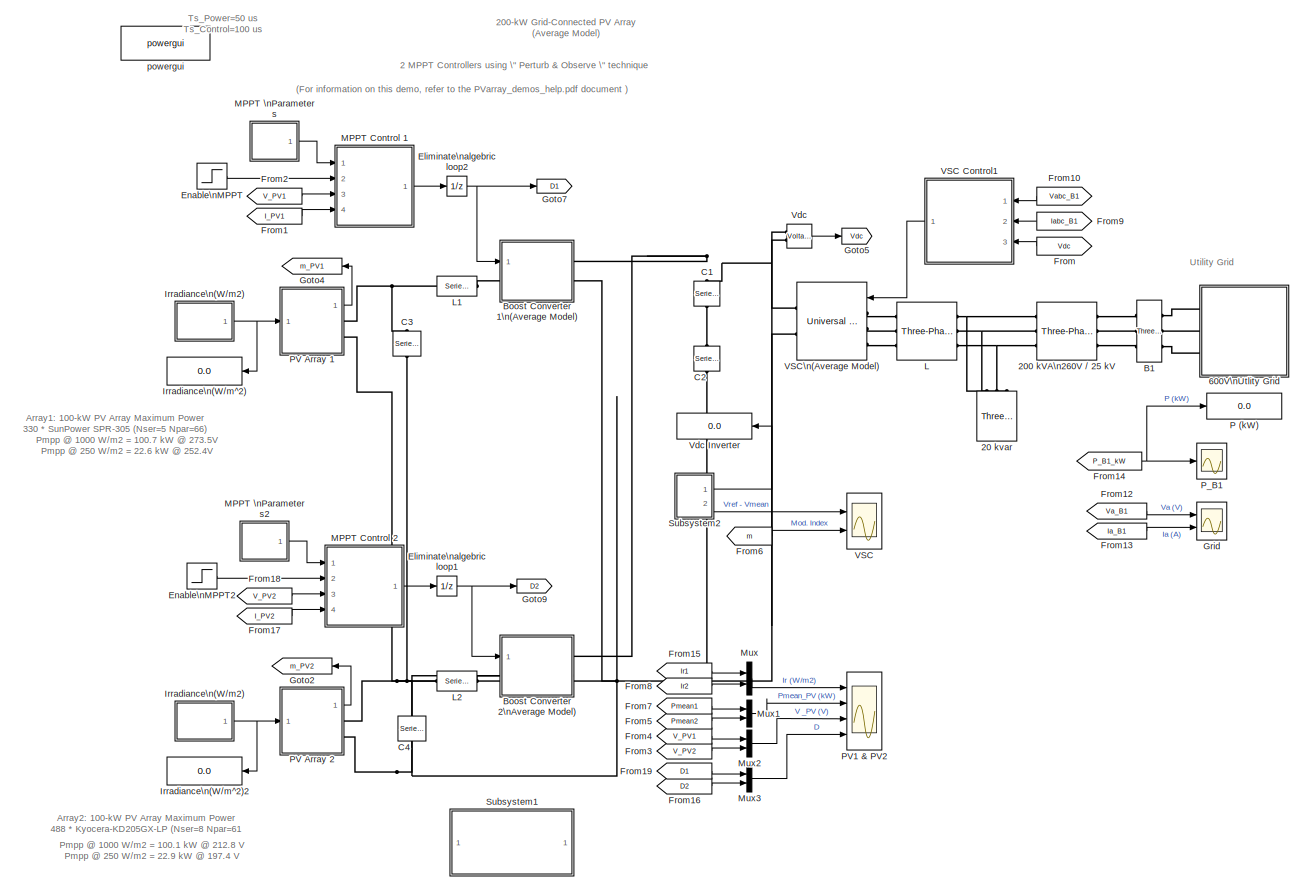
[diagram: root canvas - part 1/1, most of the canvas]
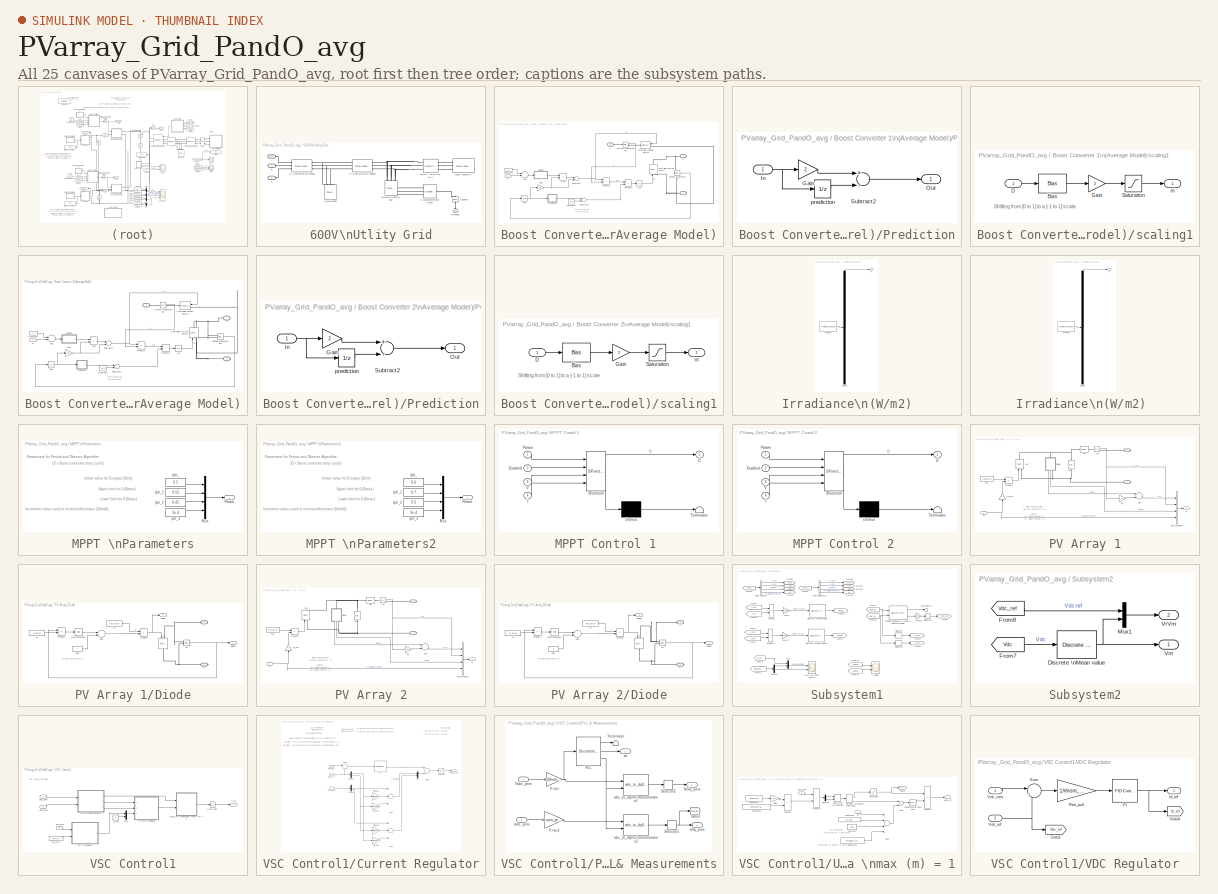
[diagram: thumbnail index - all 25 canvases of the model, root first then tree order]
MODEL PVarray_Grid_PandO_avg
KIND model
CONFIG PreLoadFcn = Ts_Power=50e-6\nTs_Control=100e-6\n\n\n
BLOCK [Reference] 20 kvar  REF=powerlib/Elements/Three-Phase\nSeries RLC Load
  ActivePower = 20e3/100
  AttributesFormatString = \\n
  CapacitivePower = 20e3
  Configuration = Y (grounded)
  InductivePower = 0
  LConnTagsString = A|B|C
  LoadType = constant Z
  Measurements = None
  NominalFrequency = 60
  NominalVoltage = 260
  Pabc = [10e3 9e3 11e3]
  Pabcp = [10e3 9e3 11e3]
  Ports = [0, 0, 0, 0, 0, 3]
  QCabc = [100 90 110]
  QCabcp = [100 90 110]
  QLabc = [100 90 110]
  QLabcp = [100 90 110]
  SID = 809
  SourceBlock = powerlib/Elements/Three-Phase\nSeries RLC Load
  SourceProductBaseCode = PS
  SourceProductName = Simscape Electrical
  SourceType = Three-Phase Series RLC Load
  UnbalancedPower = off
  Vabc = [1e3 1e3 1e3]
  Vabcp = [1e3 1e3 1e3]
BLOCK [Reference] 200 kVA\n260V // 25 kV  REF=powerlib/Elements/Three-Phase\nTransformer\n(Two Windings)
  AttributesFormatString = \\n
  BreakLoop = off
  CoreType = Three single-phase transformers
  DataFile = 'hysteresis'
  DataType = off
  DiscreteSolver = Trapezoidal iterative
  Hysteresis = off
  InitialFluxes = [ 0.8 , -0.8 , 0.7 ]
  L0 = 0.5
  Lm = 500
  Measurements = None
  NominalPower = [200e3 , 60 ]
  Ports = [0, 0, 0, 0, 0, 3, 3]
  Rm = 500
  SID = 595
  Saturation = [ 0,0 ; 0.0024,1.2 ; 1.0,1.52 ]
  SetInitialFlux = off
  SetSaturation = off
  SourceBlock = powerlib/Elements/Three-Phase\nTransformer\n(Two Windings)
  SourceProductBaseCode = PS
  SourceProductName = Simscape Electrical
  SourceType = Three-Phase Transformer (Two Windings)
  TransfoNumber = 0
  UNITS = pu
  Winding1 = [ 25e3 , 0.001 , 0.03 ]
  Winding1Connection = Yg
  Winding2 = [ 260 , 0.001 , 0.03 ]
  Winding2Connection = Delta (D1)
BLOCK [SubSystem] 600V\nUtlity Grid
  Ports = [0, 0, 0, 0, 0, 3]
  RequestExecContextInheritance = off
  SID = 1535
BLOCK [Reference] 600V\nUtlity Grid/120 kV // 25 kV\n47 MVA  REF=powerlib/Elements/Three-Phase\nTransformer\n(Two Windings)
  AttributesFormatString = \\n
  BreakLoop = off
  CoreType = Three single-phase transformers
  DataFile = 'basic_model'
  DataType = off
  DiscreteSolver = Trapezoidal iterative
  Hysteresis = off
  InitialFluxes = [ 0.8 , -0.8 , 0.7 ]
  L0 = 0.5
  Lm = 500
  Measurements = None
  NominalPower = [47e6 60 ]
  Ports = [0, 0, 0, 0, 0, 3, 3]
  Rm = 500
  SID = 1536
  Saturation = [ 0,0  ;  0.005,1.2  ;  1.0,1.4 ]
  SetInitialFlux = off
  SetSaturation = off
  SourceBlock = powerlib/Elements/Three-Phase\nTransformer\n(Two Windings)
  SourceProductBaseCode = PS
  SourceProductName = Simscape Electrical
  SourceType = Three-Phase Transformer (Two Windings)
  TransfoNumber = 0
  UNITS = pu
  Winding1 = [ 120e3  0.08/30   0.08 ]
  Winding1Connection = Yg
  Winding2 = [ 25e3  0.08/30  0.08]
  Winding2Connection = Delta (D1)
BLOCK [Reference] 600V\nUtlity Grid/120kV 2500MVA  REF=powerlib/Electrical\nSources/Three-Phase Source
  BaseVoltage = 120e3
  BusType = swing
  Frequency = 60
  Inductance = 16.58e-3
  InternalConnection = Yg
  NonIdealSource = on
  PhaseAngle = 0
  PhaseAngles_phases = [0 -120 +120]
  Ports = [0, 0, 0, 0, 0, 0, 3]
  Pref = 0
  Prefabc = [10e3, 10e3, 10e3]
  Qmax = inf
  Qmin = -inf
  Qref = 0
  Qrefabc = [0, 0, 0]
  Resistance = 0.8929
  SID = 1537
  ShortCircuitLevel = 2500e6
  SourceBlock = powerlib/Electrical\nSources/Three-Phase Source
  SourceProductBaseCode = PS
  SourceProductName = Simscape Electrical
  SourceType = Three-Phase Source
  SpecifyImpedance = on
  Voltage = 120e3
  VoltagePhases = off
  Voltage_phases = [25e3 25e3 25e3]/sqrt(3)
  XRratio = 7
BLOCK [Reference] 600V\nUtlity Grid/2-MW\nLoad  REF=powerlib/Elements/Three-Phase\nParallel RLC Load
  ActivePower = 2e6
  AttributesFormatString = \\n
  CapacitivePower = 0
  Configuration = Y (grounded)
  InductivePower = 0
  LConnTagsString = A|B|C
  LoadType = constant Z
  Measurements = None
  NominalFrequency = 60
  NominalVoltage = 25e3
  Pabc = [10e3 9e3 11e3]
  Pabcp = [10e3 9e3 11e3]
  Ports = [0, 0, 0, 0, 0, 3]
  QCabc = [100 90 110]
  QCabcp = [100 90 110]
  QLabc = [100 90 110]
  QLabcp = [100 90 110]
  SID = 1538
  SourceBlock = powerlib/Elements/Three-Phase\nParallel RLC Load
  SourceProductBaseCode = PS
  SourceProductName = Simscape Electrical
  SourceType = Three-Phase Parallel RLC Load
  UnbalancedPower = off
  Vabc = [1e3 1e3 1e3]
  Vabcp = [1e3 1e3 1e3]
BLOCK [Reference] 600V\nUtlity Grid/3.3ohms   REF=powerlib/Elements/Series RLC Branch
  BranchType = R
  Capacitance = []
  Inductance = []
  InitialCurrent = 0
  InitialVoltage = 0
  LConnTagsString = __new0
  Measurements = None
  Ports = [0, 0, 0, 0, 0, 1, 1]
  RConnTagsString = __new0
  Resistance = 3.3
  SID = 1539
  SetiL0 = off
  Setx0 = off
  SourceBlock = powerlib/Elements/Series RLC Branch
  SourceProductBaseCode = PS
  SourceProductName = Simscape Electrical
  SourceType = Series RLC Branch
BLOCK [Reference] 600V\nUtlity Grid/30-MW\n2-Mvar\nLoad  REF=powerlib/Elements/Three-Phase\nParallel RLC Load
  ActivePower = 30e6
  AttributesFormatString = \\n
  CapacitivePower = 0
  Configuration = Y (grounded)
  InductivePower = 2e6
  LConnTagsString = A|B|C
  LoadType = constant Z
  Measurements = None
  NominalFrequency = 60
  NominalVoltage = 25e3
  Pabc = [10e3 9e3 11e3]
  Pabcp = [10e3 9e3 11e3]
  Ports = [0, 0, 0, 0, 0, 3]
  QCabc = [100 90 110]
  QCabcp = [100 90 110]
  QLabc = [100 90 110]
  QLabcp = [100 90 110]
  SID = 1540
  SourceBlock = powerlib/Elements/Three-Phase\nParallel RLC Load
  SourceProductBaseCode = PS
  SourceProductName = Simscape Electrical
  SourceType = Three-Phase Parallel RLC Load
  UnbalancedPower = off
  Vabc = [1e3 1e3 1e3]
  Vabcp = [1e3 1e3 1e3]
BLOCK [PMIOPort] 600V\nUtlity Grid/A
  SID = 1545
  Side = Left
BLOCK [PMIOPort] 600V\nUtlity Grid/B
  Port = 2
  SID = 1546
  Side = Left
BLOCK [PMIOPort] 600V\nUtlity Grid/C
  Port = 3
  SID = 1547
  Side = Left
BLOCK [Reference] 600V\nUtlity Grid/Ground3  REF=powerlib/Elements/Ground
  AttributesFormatString = \\n
  LConnTagsString = a
  Ports = [0, 0, 0, 0, 0, 1]
  SID = 1541
  SourceBlock = powerlib/Elements/Ground
  SourceProductBaseCode = PS
  SourceProductName = Simscape Electrical
  SourceType = Ground
BLOCK [Reference] 600V\nUtlity Grid/Grounding\nTransformer   REF=powerlib/Elements/Grounding\nTransformer 
  MagnetizationBranch_SI = [1041.7 3.927e+005]
  MagnetizationBranch_pu = [500 500]
  Measurements = None
  NominalPower = [100e6   60]
  NominalVoltage = 25e3
  Ports = [0, 0, 0, 0, 0, 3, 1]
  SID = 1542
  SourceBlock = powerlib/Elements/Grounding\nTransformer
  SourceProductBaseCode = PS
  SourceProductName = Simscape Electrical
  SourceType = Grounding Transformer
  UNITS = pu
  ZeroSequenceImpedance_SI = [0.052083 589.05]
  ZeroSequenceImpedance_pu = [0.025 0.75]
BLOCK [Reference] 600V\nUtlity Grid/PI Section\n14 km Feeder  REF=powerlib/Elements/Three-Phase\nPI Section Line
  AttributesFormatString = \\n
  Capacitances = [11.33e-009 5.01e-009]
  Frequency = 60
  Inductances = [1.05e-3 3.32e-3]
  LConnTagsString = a|b|c
  Length = 14
  Ports = [0, 0, 0, 0, 0, 3, 3]
  RConnTagsString = A|B|C
  Resistances = [0.1153 0.413]
  SID = 1543
  SourceBlock = powerlib/Elements/Three-Phase\nPI Section Line
  SourceProductBaseCode = PS
  SourceProductName = Simscape Electrical
  SourceType = Three-Phase PI Section Line
BLOCK [Reference] 600V\nUtlity Grid/PI Section\n5 km Feeder  REF=powerlib/Elements/Three-Phase\nPI Section Line
  AttributesFormatString = \\n
  Capacitances = [11.33e-009 5.01e-009]
  Frequency = 60
  Inductances = [1.05e-3 3.32e-3]
  LConnTagsString = a|b|c
  Length = 5
  Ports = [0, 0, 0, 0, 0, 3, 3]
  RConnTagsString = A|B|C
  Resistances = [0.1153 0.413]
  SID = 1933
  SourceBlock = powerlib/Elements/Three-Phase\nPI Section Line
  SourceProductBaseCode = PS
  SourceProductName = Simscape Electrical
  SourceType = Three-Phase PI Section Line
BLOCK [Reference] B1  REF=powerlib/Measurements/Three-Phase\nV-I Measurement
  CurrentMeasurement = yes
  Ipu = off
  LabelI = Iabc_B1
  LabelV = Vabc_B1
  OutputType = Magnitude
  PSBequivalent = 0
  Pbase = 100e6
  PhasorSimulation = off
  Ports = [0, 0, 0, 0, 0, 3, 3]
  SID = 596
  SetLabelI = on
  SetLabelV = on
  SourceBlock = powerlib/Measurements/Three-Phase\nV-I Measurement
  SourceProductBaseCode = PS
  SourceProductName = Simscape Electrical
  SourceType = Three-Phase VI Measurement
  Vbase = 500e3
  VoltageMeasurement = phase-to-ground
  Vpu = off
  VpuLL = off
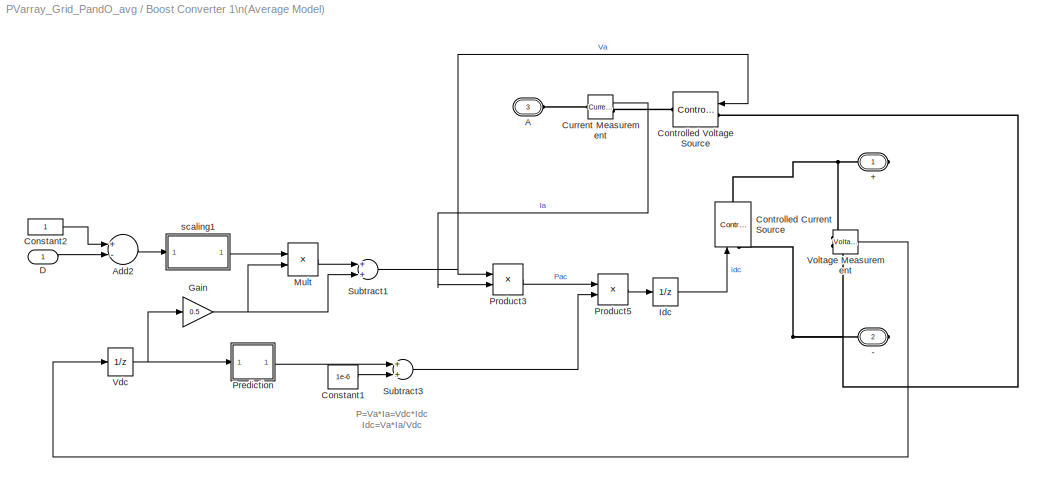
BLOCK [SubSystem] Boost Converter 1\n(Average Model)
  Ports = [1, 0, 0, 0, 0, 1, 2]
  RequestExecContextInheritance = off
  SID = 1693
BLOCK [PMIOPort] Boost Converter 1\n(Average Model)/+
  SID = 1720
  Side = Right
  Tag = PMCPort
BLOCK [PMIOPort] Boost Converter 1\n(Average Model)/-
  Port = 2
  SID = 1721
  Side = Right
  Tag = PMCPort
BLOCK [PMIOPort] Boost Converter 1\n(Average Model)/A
  Port = 3
  SID = 1724
  Side = Left
  Tag = PMCPort
BLOCK [Sum] Boost Converter 1\n(Average Model)/Add2
  InputSameDT = off
  Inputs = +-
  OutDataTypeStr = Inherit: Inherit via internal rule
  Ports = [2, 1]
  SID = 1709
  SaturateOnIntegerOverflow = off
BLOCK [Constant] Boost Converter 1\n(Average Model)/Constant1
  SID = 1676
  Value = 1e-6
BLOCK [Constant] Boost Converter 1\n(Average Model)/Constant2
  SID = 1710
BLOCK [Reference] Boost Converter 1\n(Average Model)/Controlled Current Source  REF=powerlib/Electrical\nSources/Controlled Current Source
  Amplitude = 0
  Frequency = 0
  Initialize = on
  Measurements = None
  Phase = 0
  Ports = [1, 0, 0, 0, 0, 1, 1]
  SID = 1719
  SourceBlock = powerlib/Electrical\nSources/Controlled Current Source
  SourceProductBaseCode = PS
  SourceProductName = Simscape Electrical
  SourceType = Controlled Current Source
  Source_Type = AC
BLOCK [Reference] Boost Converter 1\n(Average Model)/Controlled Voltage Source  REF=powerlib/Electrical\nSources/Controlled Voltage Source
  Amplitude = 0
  Frequency = 0
  Initialize = on
  Measurements = None
  Phase = 0
  Ports = [1, 0, 0, 0, 0, 1, 1]
  SID = 1723
  SourceBlock = powerlib/Electrical\nSources/Controlled Voltage Source
  SourceProductBaseCode = PS
  SourceProductName = Simscape Electrical
  SourceType = Controlled Voltage Source
  Source_Type = AC
BLOCK [Reference] Boost Converter 1\n(Average Model)/Current Measurement  REF=powerlib/Measurements/Current Measurement
  OutputType = Complex
  PSBequivalent = 0
  PhasorSimulation = off
  Ports = [0, 1, 0, 0, 0, 1, 1]
  SID = 1725
  SourceBlock = powerlib/Measurements/Current Measurement
  SourceProductBaseCode = PS
  SourceProductName = Simscape Electrical
  SourceType = Current Measurement
BLOCK [Inport] Boost Converter 1\n(Average Model)/D
  IconDisplay = Port number
  SID = 1694
BLOCK [Gain] Boost Converter 1\n(Average Model)/Gain
  Gain = 0.5
  OutDataTypeStr = Inherit: Inherit via internal rule
  ParamDataTypeStr = Inherit: Inherit via internal rule
  SID = 1677
  SaturateOnIntegerOverflow = off
BLOCK [UnitDelay] Boost Converter 1\n(Average Model)/Idc
  HasFrameUpgradeWarning = on
  SID = 1678
  SampleTime = Ts
BLOCK [Product] Boost Converter 1\n(Average Model)/Mult
  InputSameDT = off
  Inputs = **
  OutDataTypeStr = Inherit: Inherit via internal rule
  Ports = [2, 1]
  RndMeth = Floor
  SID = 1679
  SaturateOnIntegerOverflow = off
BLOCK [SubSystem] Boost Converter 1\n(Average Model)/Prediction
  Ports = [1, 1]
  RequestExecContextInheritance = off
  SID = 1680
BLOCK [Gain] Boost Converter 1\n(Average Model)/Prediction/Gain
  Gain = 2
  OutDataTypeStr = Inherit: Inherit via internal rule
  ParamDataTypeStr = Inherit: Inherit via internal rule
  SID = 1682
  SaturateOnIntegerOverflow = off
BLOCK [Inport] Boost Converter 1\n(Average Model)/Prediction/In
  IconDisplay = Port number
  SID = 1681
BLOCK [Outport] Boost Converter 1\n(Average Model)/Prediction/Out
  IconDisplay = Port number
  SID = 1685
BLOCK [Sum] Boost Converter 1\n(Average Model)/Prediction/Subtract2
  InputSameDT = off
  Inputs = +-
  OutDataTypeStr = Inherit: Inherit via internal rule
  Ports = [2, 1]
  SID = 1683
  SaturateOnIntegerOverflow = off
BLOCK [UnitDelay] Boost Converter 1\n(Average Model)/Prediction/prediction
  HasFrameUpgradeWarning = on
  SID = 1684
  SampleTime = Ts
BLOCK [Product] Boost Converter 1\n(Average Model)/Product3
  InputSameDT = off
  OutDataTypeStr = Inherit: Inherit via internal rule
  Ports = [2, 1]
  SID = 1686
  SaturateOnIntegerOverflow = off
BLOCK [Product] Boost Converter 1\n(Average Model)/Product5
  InputSameDT = off
  Inputs = */
  OutDataTypeStr = Inherit: Inherit via internal rule
  Ports = [2, 1]
  SID = 1687
  SaturateOnIntegerOverflow = off
BLOCK [Sum] Boost Converter 1\n(Average Model)/Subtract1
  InputSameDT = off
  OutDataTypeStr = Inherit: Inherit via internal rule
  Ports = [2, 1]
  SID = 1688
  SaturateOnIntegerOverflow = off
BLOCK [Sum] Boost Converter 1\n(Average Model)/Subtract3
  InputSameDT = off
  OutDataTypeStr = Inherit: Inherit via internal rule
  Ports = [2, 1]
  SID = 1689
  SaturateOnIntegerOverflow = off
BLOCK [UnitDelay] Boost Converter 1\n(Average Model)/Vdc
  HasFrameUpgradeWarning = on
  SID = 1690
  SampleTime = Ts
BLOCK [Reference] Boost Converter 1\n(Average Model)/Voltage Measurement  REF=powerlib/Measurements/Voltage Measurement
  OutputType = Complex
  PSBequivalent = 0
  PhasorSimulation = off
  Ports = [0, 1, 0, 0, 0, 2]
  SID = 1722
  SourceBlock = powerlib/Measurements/Voltage Measurement
  SourceProductBaseCode = PS
  SourceProductName = Simscape Electrical
  SourceType = Voltage Measurement
BLOCK [SubSystem] Boost Converter 1\n(Average Model)/scaling1
  Ports = [1, 1]
  RequestExecContextInheritance = off
  SID = 1712
BLOCK [Bias] Boost Converter 1\n(Average Model)/scaling1/Bias
  Bias = -0.5
  SID = 1714
  SaturateOnIntegerOverflow = off
BLOCK [Inport] Boost Converter 1\n(Average Model)/scaling1/D
  IconDisplay = Port number
  SID = 1713
BLOCK [Gain] Boost Converter 1\n(Average Model)/scaling1/Gain
  Gain = 2
  OutDataTypeStr = Inherit: Inherit via internal rule
  ParamDataTypeStr = Inherit: Inherit via internal rule
  SID = 1715
  SaturateOnIntegerOverflow = off
BLOCK [Saturate] Boost Converter 1\n(Average Model)/scaling1/Saturation
  InputPortMap = u0
  LowerLimit = -1
  Ports = [1, 1]
  SID = 1716
  UpperLimit = 1
BLOCK [Outport] Boost Converter 1\n(Average Model)/scaling1/m
  IconDisplay = Port number
  SID = 1717
BLOCK [SubSystem] Boost Converter 2\nAverage Model)
  Ports = [1, 0, 0, 0, 0, 1, 2]
  RequestExecContextInheritance = off
  SID = 1870
BLOCK [PMIOPort] Boost Converter 2\nAverage Model)/+
  SID = 1899
  Side = Right
  Tag = PMCPort
BLOCK [PMIOPort] Boost Converter 2\nAverage Model)/-
  Port = 2
  SID = 1900
  Side = Right
  Tag = PMCPort
BLOCK [PMIOPort] Boost Converter 2\nAverage Model)/A
  Port = 3
  SID = 1901
  Side = Left
  Tag = PMCPort
BLOCK [Sum] Boost Converter 2\nAverage Model)/Add2
  InputSameDT = off
  Inputs = +-
  OutDataTypeStr = Inherit: Inherit via internal rule
  Ports = [2, 1]
  SID = 1872
  SaturateOnIntegerOverflow = off
BLOCK [Constant] Boost Converter 2\nAverage Model)/Constant1
  SID = 1873
  Value = 1e-6
BLOCK [Constant] Boost Converter 2\nAverage Model)/Constant2
  SID = 1874
BLOCK [Reference] Boost Converter 2\nAverage Model)/Controlled Current Source  REF=powerlib/Electrical\nSources/Controlled Current Source
  Amplitude = 0
  Frequency = 0
  Initialize = on
  Measurements = None
  Phase = 0
  Ports = [1, 0, 0, 0, 0, 1, 1]
  SID = 1875
  SourceBlock = powerlib/Electrical\nSources/Controlled Current Source
  SourceProductBaseCode = PS
  SourceProductName = Simscape Electrical
  SourceType = Controlled Current Source
  Source_Type = AC
BLOCK [Reference] Boost Converter 2\nAverage Model)/Controlled Voltage Source  REF=powerlib/Electrical\nSources/Controlled Voltage Source
  Amplitude = 0
  Frequency = 0
  Initialize = on
  Measurements = None
  Phase = 0
  Ports = [1, 0, 0, 0, 0, 1, 1]
  SID = 1876
  SourceBlock = powerlib/Electrical\nSources/Controlled Voltage Source
  SourceProductBaseCode = PS
  SourceProductName = Simscape Electrical
  SourceType = Controlled Voltage Source
  Source_Type = AC
BLOCK [Reference] Boost Converter 2\nAverage Model)/Current Measurement  REF=powerlib/Measurements/Current Measurement
  OutputType = Complex
  PSBequivalent = 0
  PhasorSimulation = off
  Ports = [0, 1, 0, 0, 0, 1, 1]
  SID = 1877
  SourceBlock = powerlib/Measurements/Current Measurement
  SourceProductBaseCode = PS
  SourceProductName = Simscape Electrical
  SourceType = Current Measurement
BLOCK [Inport] Boost Converter 2\nAverage Model)/D
  IconDisplay = Port number
  SID = 1871
BLOCK [Gain] Boost Converter 2\nAverage Model)/Gain
  Gain = 0.5
  OutDataTypeStr = Inherit: Inherit via internal rule
  ParamDataTypeStr = Inherit: Inherit via internal rule
  SID = 1878
  SaturateOnIntegerOverflow = off
BLOCK [UnitDelay] Boost Converter 2\nAverage Model)/Idc
  HasFrameUpgradeWarning = on
  SID = 1879
  SampleTime = Ts
BLOCK [Product] Boost Converter 2\nAverage Model)/Mult
  InputSameDT = off
  Inputs = **
  OutDataTypeStr = Inherit: Inherit via internal rule
  Ports = [2, 1]
  RndMeth = Floor
  SID = 1880
  SaturateOnIntegerOverflow = off
BLOCK [SubSystem] Boost Converter 2\nAverage Model)/Prediction
  Ports = [1, 1]
  RequestExecContextInheritance = off
  SID = 1881
BLOCK [Gain] Boost Converter 2\nAverage Model)/Prediction/Gain
  Gain = 2
  OutDataTypeStr = Inherit: Inherit via internal rule
  ParamDataTypeStr = Inherit: Inherit via internal rule
  SID = 1883
  SaturateOnIntegerOverflow = off
BLOCK [Inport] Boost Converter 2\nAverage Model)/Prediction/In
  IconDisplay = Port number
  SID = 1882
BLOCK [Outport] Boost Converter 2\nAverage Model)/Prediction/Out
  IconDisplay = Port number
  SID = 1886
BLOCK [Sum] Boost Converter 2\nAverage Model)/Prediction/Subtract2
  InputSameDT = off
  Inputs = +-
  OutDataTypeStr = Inherit: Inherit via internal rule
  Ports = [2, 1]
  SID = 1884
  SaturateOnIntegerOverflow = off
BLOCK [UnitDelay] Boost Converter 2\nAverage Model)/Prediction/prediction
  HasFrameUpgradeWarning = on
  SID = 1885
  SampleTime = Ts
BLOCK [Product] Boost Converter 2\nAverage Model)/Product3
  InputSameDT = off
  OutDataTypeStr = Inherit: Inherit via internal rule
  Ports = [2, 1]
  SID = 1887
  SaturateOnIntegerOverflow = off
BLOCK [Product] Boost Converter 2\nAverage Model)/Product5
  InputSameDT = off
  Inputs = */
  OutDataTypeStr = Inherit: Inherit via internal rule
  Ports = [2, 1]
  SID = 1888
  SaturateOnIntegerOverflow = off
BLOCK [Sum] Boost Converter 2\nAverage Model)/Subtract1
  InputSameDT = off
  OutDataTypeStr = Inherit: Inherit via internal rule
  Ports = [2, 1]
  SID = 1889
  SaturateOnIntegerOverflow = off
BLOCK [Sum] Boost Converter 2\nAverage Model)/Subtract3
  InputSameDT = off
  OutDataTypeStr = Inherit: Inherit via internal rule
  Ports = [2, 1]
  SID = 1890
  SaturateOnIntegerOverflow = off
BLOCK [UnitDelay] Boost Converter 2\nAverage Model)/Vdc
  HasFrameUpgradeWarning = on
  SID = 1891
  SampleTime = Ts
BLOCK [Reference] Boost Converter 2\nAverage Model)/Voltage Measurement  REF=powerlib/Measurements/Voltage Measurement
  OutputType = Complex
  PSBequivalent = 0
  PhasorSimulation = off
  Ports = [0, 1, 0, 0, 0, 2]
  SID = 1892
  SourceBlock = powerlib/Measurements/Voltage Measurement
  SourceProductBaseCode = PS
  SourceProductName = Simscape Electrical
  SourceType = Voltage Measurement
BLOCK [SubSystem] Boost Converter 2\nAverage Model)/scaling1
  Ports = [1, 1]
  RequestExecContextInheritance = off
  SID = 1893
BLOCK [Bias] Boost Converter 2\nAverage Model)/scaling1/Bias
  Bias = -0.5
  SID = 1895
  SaturateOnIntegerOverflow = off
BLOCK [Inport] Boost Converter 2\nAverage Model)/scaling1/D
  IconDisplay = Port number
  SID = 1894
BLOCK [Gain] Boost Converter 2\nAverage Model)/scaling1/Gain
  Gain = 2
  OutDataTypeStr = Inherit: Inherit via internal rule
  ParamDataTypeStr = Inherit: Inherit via internal rule
  SID = 1896
  SaturateOnIntegerOverflow = off
BLOCK [Saturate] Boost Converter 2\nAverage Model)/scaling1/Saturation
  InputPortMap = u0
  LowerLimit = -1
  Ports = [1, 1]
  SID = 1897
  UpperLimit = 1
BLOCK [Outport] Boost Converter 2\nAverage Model)/scaling1/m
  IconDisplay = Port number
  SID = 1898
BLOCK [Reference] C1  REF=powerlib/Elements/Series RLC Branch
  AttributesFormatString = \\n
  BranchType = C
  Capacitance = 24000e-06
  Inductance = 1.0
  InitialCurrent = 0
  InitialVoltage = 0
  LConnTagsString = __new0
  Measurements = None
  Ports = [0, 0, 0, 0, 0, 1, 1]
  RConnTagsString = __new0
  Resistance = 1.0
  SID = 495
  SetiL0 = off
  Setx0 = off
  SourceBlock = powerlib/Elements/Series RLC Branch
  SourceProductBaseCode = PS
  SourceProductName = Simscape Electrical
  SourceType = Series RLC Branch
BLOCK [Reference] C2  REF=powerlib/Elements/Series RLC Branch
  AttributesFormatString = \\n
  BranchType = C
  Capacitance = 24000e-06
  Inductance = 1.0
  InitialCurrent = 0
  InitialVoltage = 0
  LConnTagsString = __new0
  Measurements = None
  Ports = [0, 0, 0, 0, 0, 1, 1]
  RConnTagsString = __new0
  Resistance = 1.0
  SID = 1075
  SetiL0 = off
  Setx0 = off
  SourceBlock = powerlib/Elements/Series RLC Branch
  SourceProductBaseCode = PS
  SourceProductName = Simscape Electrical
  SourceType = Series RLC Branch
BLOCK [Reference] C3  REF=powerlib/Elements/Series RLC Branch
  AttributesFormatString = \\n
  BranchType = C
  Capacitance = 100e-6
  Inductance = 1.0
  InitialCurrent = 0
  InitialVoltage = 0
  LConnTagsString = __new0
  Measurements = Branch voltage
  Ports = [0, 0, 0, 0, 0, 1, 1]
  RConnTagsString = __new0
  Resistance = 1.0
  SID = 676
  SetiL0 = off
  Setx0 = off
  SourceBlock = powerlib/Elements/Series RLC Branch
  SourceProductBaseCode = PS
  SourceProductName = Simscape Electrical
  SourceType = Series RLC Branch
BLOCK [Reference] C4  REF=powerlib/Elements/Series RLC Branch
  AttributesFormatString = \\n
  BranchType = C
  Capacitance = 100e-6
  Inductance = 1.0
  InitialCurrent = 0
  InitialVoltage = 0
  LConnTagsString = __new0
  Measurements = Branch voltage
  Ports = [0, 0, 0, 0, 0, 1, 1]
  RConnTagsString = __new0
  Resistance = 1.0
  SID = 1902
  SetiL0 = off
  Setx0 = off
  SourceBlock = powerlib/Elements/Series RLC Branch
  SourceProductBaseCode = PS
  SourceProductName = Simscape Electrical
  SourceType = Series RLC Branch
BLOCK [UnitDelay] Eliminate\nalgebric loop1
  HasFrameUpgradeWarning = on
  SID = 1917
  SampleTime = Ts_Control
BLOCK [UnitDelay] Eliminate\nalgebric loop2
  HasFrameUpgradeWarning = on
  SID = 1718
  SampleTime = Ts_Control
BLOCK [Step] Enable\nMPPT
  SID = 1530
  SampleTime = 0
  Time = 0.3
BLOCK [Step] Enable\nMPPT2
  SID = 1918
  SampleTime = 0
  Time = 0.3
BLOCK [From] From
  GotoTag = Vdc
  SID = 605
  TagVisibility = global
BLOCK [From] From1
  CloseFcn = tagdialog Close
  GotoTag = I_PV1
  SID = 1726
  TagVisibility = global
BLOCK [From] From10
  CloseFcn = tagdialog Close
  GotoTag = Vabc_B1
  SID = 601
  TagVisibility = global
BLOCK [From] From12
  CloseFcn = tagdialog Close
  GotoTag = Va_B1
  SID = 1088
  TagVisibility = global
BLOCK [From] From13
  CloseFcn = tagdialog Close
  GotoTag = Ia_B1
  SID = 1089
  TagVisibility = global
BLOCK [From] From14
  CloseFcn = tagdialog Close
  GotoTag = P_B1_kW
  SID = 1090
  TagVisibility = global
BLOCK [From] From15
  CloseFcn = tagdialog Close
  GotoTag = Ir1
  SID = 1960
  TagVisibility = global
BLOCK [From] From16
  CloseFcn = tagdialog Close
  GotoTag = D2
  SID = 1961
  TagVisibility = global
BLOCK [From] From17
  CloseFcn = tagdialog Close
  GotoTag = I_PV2
  SID = 1919
  TagVisibility = global
BLOCK [From] From18
  CloseFcn = tagdialog Close
  GotoTag = V_PV2
  SID = 1920
  TagVisibility = global
BLOCK [From] From19
  CloseFcn = tagdialog Close
  GotoTag = D1
  SID = 1962
  TagVisibility = global
BLOCK [From] From2
  CloseFcn = tagdialog Close
  GotoTag = V_PV1
  SID = 988
  TagVisibility = global
BLOCK [From] From3
  CloseFcn = tagdialog Close
  GotoTag = V_PV2
  SID = 1955
  TagVisibility = global
BLOCK [From] From4
  CloseFcn = tagdialog Close
  GotoTag = V_PV1
  SID = 1956
  TagVisibility = global
BLOCK [From] From5
  CloseFcn = tagdialog Close
  GotoTag = Pmean2
  SID = 1957
  TagVisibility = global
BLOCK [From] From6
  CloseFcn = tagdialog Close
  GotoTag = m
  SID = 1000
  TagVisibility = global
BLOCK [From] From7
  CloseFcn = tagdialog Close
  GotoTag = Pmean1
  SID = 1958
  TagVisibility = global
BLOCK [From] From8
  CloseFcn = tagdialog Close
  GotoTag = Ir2
  SID = 1959
  TagVisibility = global
BLOCK [From] From9
  CloseFcn = tagdialog Close
  GotoTag = Iabc_B1
  SID = 600
  TagVisibility = global
BLOCK [Goto] Goto2
  GotoTag = m_PV2
  SID = 1838
  TagVisibility = global
BLOCK [Goto] Goto4
  GotoTag = m_PV1
  SID = 1635
  TagVisibility = global
BLOCK [Goto] Goto5
  GotoTag = Vdc
  SID = 603
  TagVisibility = global
BLOCK [Goto] Goto7
  GotoTag = D1
  SID = 1699
  TagVisibility = global
BLOCK [Goto] Goto9
  GotoTag = D2
  SID = 1921
  TagVisibility = global
BLOCK [Scope] Grid
  Floating = off
  NumInputPorts = 2
  Ports = [2]
  SID = 1087
  ScopeSpecificationString = C++SS(StrPVP('Location','[585, 571, 994, 950]'),StrPVP('Open','off'),StrPVP('ZoomMode','xonly'),MxPVP('AxesTitles',54,'struct(''axes1'',''%<SignalLabel>'',''axes2'',''%<SignalLabel>'')'),StrPVP('ShowLegends','off'),StrPVP('TimeRange','0.05'),StrPVP('YMin','-25000~-7'),StrPVP('YMax','25000~7'),StrPVP('SaveName','ScopeData9'),StrPVP('DataFormat','StructureWithTime'),StrPVP('LimitDataPoints','off'),S...<+98ch>
BLOCK [SubSystem] Irradiance\n(W//m2)
  ClipboardFcn = sigbuilder_block('clipboard');
  CloseFcn = sigbuilder_block('close');
  ContinueFcn = sigbuilder_block('continue')
  CopyFcn = sigbuilder_block('copy');
  DeleteFcn = sigbuilder_block('delete');
  LoadFcn = sigbuilder_block('load');
  MaskHideContents = on
  ModelCloseFcn = sigbuilder_block('modelClose');
  NameChangeFcn = sigbuilder_block('namechange');
  OpenFcn = sigbuilder_block('open',[-87.75 76.5 954 513.75 ]);
  PauseFcn = sigbuilder_block('pause')
  Ports = [0, 1]
  PreSaveFcn = sigbuilder_block('preSave');
  RequestExecContextInheritance = off
  SID = 1534
  StartFcn = sigbuilder_block('start');
  StopFcn = sigbuilder_block('stop');
  Tag = STV Subsys
BLOCK [SubSystem] Irradiance\n(W//m2) 
  ClipboardFcn = sigbuilder_block('clipboard');
  CloseFcn = sigbuilder_block('close');
  ContinueFcn = sigbuilder_block('continue')
  CopyFcn = sigbuilder_block('copy');
  DeleteFcn = sigbuilder_block('delete');
  LoadFcn = sigbuilder_block('load');
  MaskHideContents = on
  ModelCloseFcn = sigbuilder_block('modelClose');
  NameChangeFcn = sigbuilder_block('namechange');
  OpenFcn = sigbuilder_block('open',[3 117 954 513 ]);
  PauseFcn = sigbuilder_block('pause')
  Ports = [0, 1]
  PreSaveFcn = sigbuilder_block('preSave');
  RequestExecContextInheritance = off
  SID = 1839
  StartFcn = sigbuilder_block('start');
  StopFcn = sigbuilder_block('stop');
  Tag = STV Subsys
BLOCK [Demux] Irradiance\n(W//m2) /Demux
  Outputs = 1
  Ports = [1, 1]
  SID = 1839:1
  Tag = STV Demux
BLOCK [FromWorkspace] Irradiance\n(W//m2) /FromWs
  SID = 1839:2
  SampleTime = 0
  SigBuilderData = DataTag2
  Tag = STV FromWs
  VariableName = tuvar
  VnvData = DataTag3
  ZeroCross = on
BLOCK [Outport] Irradiance\n(W//m2) /Ir
  IconDisplay = Port number
  SID = 1839:3
  Tag = STV Outport
BLOCK [Demux] Irradiance\n(W//m2)/Demux
  Outputs = 1
  Ports = [1, 1]
  SID = 1534:1
  Tag = STV Demux
BLOCK [FromWorkspace] Irradiance\n(W//m2)/FromWs
  SID = 1534:2
  SampleTime = 0
  SigBuilderData = DataTag0
  Tag = STV FromWs
  VariableName = tuvar
  VnvData = DataTag1
  ZeroCross = on
BLOCK [Outport] Irradiance\n(W//m2)/Ir
  IconDisplay = Port number
  SID = 1534:3
  Tag = STV Outport
BLOCK [Display] Irradiance\n(W//m^2)
  Decimation = 1000
  Format = bank
  Ports = [1]
  SID = 1122
BLOCK [Display] Irradiance\n(W//m^2)2
  Decimation = 1000
  Format = bank
  Ports = [1]
  SID = 1840
BLOCK [Reference] L  REF=powerlib/Elements/Three-Phase\nSeries RLC Branch
  AttributesFormatString = \\n
  BranchType = RL
  Capacitance = inf
  Inductance = 125e-6
  LConnTagsString = A|B|C
  Measurements = None
  Ports = [0, 0, 0, 0, 0, 3, 3]
  RConnTagsString = A|B|C
  Resistance = 1e-3
  SID = 498
  SourceBlock = powerlib/Elements/Three-Phase\nSeries RLC Branch
  SourceProductBaseCode = PS
  SourceProductName = Simscape Electrical
  SourceType = Three-Phase Series RLC Branch
BLOCK [Reference] L1  REF=powerlib/Elements/Series RLC Branch
  BranchType = RL
  Capacitance = 1e-6
  Inductance = 5e-3
  InitialCurrent = 0
  InitialVoltage = 0
  LConnTagsString = __new0
  Measurements = None
  Ports = [0, 0, 0, 0, 0, 1, 1]
  RConnTagsString = __new0
  Resistance = 0.005
  SID = 343
  SetiL0 = off
  Setx0 = off
  SourceBlock = powerlib/Elements/Series RLC Branch
  SourceProductBaseCode = PS
  SourceProductName = Simscape Electrical
  SourceType = Series RLC Branch
BLOCK [Reference] L2  REF=powerlib/Elements/Series RLC Branch
  BranchType = RL
  Capacitance = 1e-6
  Inductance = 5e-3
  InitialCurrent = 0
  InitialVoltage = 0
  LConnTagsString = __new0
  Measurements = None
  Ports = [0, 0, 0, 0, 0, 1, 1]
  RConnTagsString = __new0
  Resistance = 0.005
  SID = 1903
  SetiL0 = off
  Setx0 = off
  SourceBlock = powerlib/Elements/Series RLC Branch
  SourceProductBaseCode = PS
  SourceProductName = Simscape Electrical
  SourceType = Series RLC Branch
BLOCK [SubSystem] MPPT Control 1 
  ErrorFcn = Stateflow.Translate.translate
  PermitHierarchicalResolution = ExplicitOnly
  Ports = [4, 1]
  RequestExecContextInheritance = off
  SFBlockType = MATLAB Function
  SID = 1471
  TreatAsAtomicUnit = on
BLOCK [Demux] MPPT Control 1 / Demux 
  Outputs = 1
  Ports = [1, 1]
  SID = 1471::97
BLOCK [S-Function] MPPT Control 1 / SFunction 
  EnableBusSupport = off
  FunctionName = sf_sfun
  PortCounts = [4 2]
  Ports = [4, 2]
  SFcnIsStateOwnerBlock = off
  SFunctionDeploymentMode = off
  SID = 1471::96
  Tag = Stateflow S-Function 4
BLOCK [Terminator] MPPT Control 1 / Terminator 
  SID = 1471::98
BLOCK [Outport] MPPT Control 1 /D
  IconDisplay = Port number
  SID = 1471::35
BLOCK [Inport] MPPT Control 1 /Enabled
  IconDisplay = Port number
  Port = 2
  SID = 1471::91
BLOCK [Inport] MPPT Control 1 /I
  IconDisplay = Port number
  Port = 4
  SID = 1471::1
BLOCK [Inport] MPPT Control 1 /Param
  IconDisplay = Port number
  SID = 1471::90
BLOCK [Inport] MPPT Control 1 /V
  IconDisplay = Port number
  Port = 3
  SID = 1471::85
BLOCK [SubSystem] MPPT Control 2 
  ErrorFcn = Stateflow.Translate.translate
  PermitHierarchicalResolution = ExplicitOnly
  Ports = [4, 1]
  RequestExecContextInheritance = off
  SFBlockType = MATLAB Function
  SID = 1929
  TreatAsAtomicUnit = on
BLOCK [Demux] MPPT Control 2 / Demux 
  Outputs = 1
  Ports = [1, 1]
  SID = 1929::97
BLOCK [S-Function] MPPT Control 2 / SFunction 
  EnableBusSupport = off
  FunctionName = sf_sfun
  PortCounts = [4 2]
  Ports = [4, 2]
  SFcnIsStateOwnerBlock = off
  SFunctionDeploymentMode = off
  SID = 1929::96
  Tag = Stateflow S-Function 1
BLOCK [Terminator] MPPT Control 2 / Terminator 
  SID = 1929::98
BLOCK [Outport] MPPT Control 2 /D
  IconDisplay = Port number
  SID = 1929::35
BLOCK [Inport] MPPT Control 2 /Enabled
  IconDisplay = Port number
  Port = 2
  SID = 1929::91
BLOCK [Inport] MPPT Control 2 /I
  IconDisplay = Port number
  Port = 4
  SID = 1929::1
BLOCK [Inport] MPPT Control 2 /Param
  IconDisplay = Port number
  SID = 1929::90
BLOCK [Inport] MPPT Control 2 /V
  IconDisplay = Port number
  Port = 3
  SID = 1929::85
BLOCK [SubSystem] MPPT \nParameters
  Ports = [0, 1]
  RequestExecContextInheritance = off
  SID = 1665
BLOCK [Constant] MPPT \nParameters/Iph_
  SID = 1663
  Value = 0.5
BLOCK [Constant] MPPT \nParameters/Iph_1
  SID = 1664
  Value = 0.52
BLOCK [Constant] MPPT \nParameters/Iph_2
  SID = 1668
  Value = 0.42
BLOCK [Constant] MPPT \nParameters/Iph_3
  SID = 1669
  Value = 3e-4
BLOCK [Mux] MPPT \nParameters/Mux
  DisplayOption = bar
  Ports = [4, 1]
  SID = 1670
BLOCK [Outport] MPPT \nParameters/Param
  IconDisplay = Port number
  SID = 1666
BLOCK [SubSystem] MPPT \nParameters2
  Ports = [0, 1]
  RequestExecContextInheritance = off
  SID = 1922
BLOCK [Constant] MPPT \nParameters2/Iph_
  SID = 1923
  Value = 0.6
BLOCK [Constant] MPPT \nParameters2/Iph_1
  SID = 1924
  Value = 0.7
BLOCK [Constant] MPPT \nParameters2/Iph_2
  SID = 1925
  Value = 0.5
BLOCK [Constant] MPPT \nParameters2/Iph_3
  SID = 1926
  Value = 3e-4
BLOCK [Mux] MPPT \nParameters2/Mux
  DisplayOption = bar
  Ports = [4, 1]
  SID = 1927
BLOCK [Outport] MPPT \nParameters2/Param
  IconDisplay = Port number
  SID = 1928
BLOCK [Mux] Mux
  DisplayOption = bar
  Inputs = 2
  Ports = [2, 1]
  SID = 1935
BLOCK [Mux] Mux1
  DisplayOption = bar
  Inputs = 2
  Ports = [2, 1]
  SID = 1952
BLOCK [Mux] Mux2
  DisplayOption = bar
  Inputs = 2
  Ports = [2, 1]
  SID = 1953
BLOCK [Mux] Mux3
  DisplayOption = bar
  Inputs = 2
  Ports = [2, 1]
  SID = 1954
BLOCK [Display] P (kW)
  Decimation = 100
  Format = bank
  Ports = [1]
  SID = 1091
BLOCK [SubSystem] PV Array 1
  Ports = [1, 1, 0, 0, 0, 0, 2]
  RequestExecContextInheritance = off
  SID = 1993
BLOCK [PMIOPort] PV Array 1/+
  SID = 2020
  Side = Right
BLOCK [PMIOPort] PV Array 1/-
  Port = 2
  SID = 2021
  Side = Right
BLOCK [Sum] PV Array 1/Add
  InputSameDT = off
  Inputs = +-
  OutDataTypeStr = Inherit: Inherit via internal rule
  Ports = [2, 1]
  SID = 1995
  SaturateOnIntegerOverflow = off
BLOCK [BusCreator] PV Array 1/Bus\nCreator
  DisplayOption = bar
  InheritFromInputs = on
  Inputs = 4
  Ports = [4, 1]
  SID = 1996
BLOCK [SubSystem] PV Array 1/Diode
  Ports = [0, 2, 0, 0, 0, 1, 1]
  RequestExecContextInheritance = off
  SID = 1997
BLOCK [PMIOPort] PV Array 1/Diode/A
  SID = 2008
  Side = Left
BLOCK [Sum] PV Array 1/Diode/Add
  InputSameDT = off
  Inputs = +-
  OutDataTypeStr = Inherit: Inherit via internal rule
  Ports = [2, 1]
  SID = 1998
  SaturateOnIntegerOverflow = off
BLOCK [Reference] PV Array 1/Diode/Id  REF=powerlib/Electrical\nSources/Controlled Current Source
  Amplitude = 0
  Frequency = 0
  Initialize = on
  Measurements = None
  Phase = 0
  Ports = [1, 0, 0, 0, 0, 1, 1]
  SID = 1999
  SourceBlock = powerlib/Electrical\nSources/Controlled Current Source
  SourceProductBaseCode = PS
  SourceProductName = Simscape Electrical
  SourceType = Controlled Current Source
  Source_Type = AC
BLOCK [Outport] PV Array 1/Diode/Idiode
  IconDisplay = Port number
  Port = 2
  SID = 2011
BLOCK [Constant] PV Array 1/Diode/Is
  SID = 2000
  Value = Isat_array
BLOCK [PMIOPort] PV Array 1/Diode/K
  Port = 2
  SID = 2009
  Side = Right
BLOCK [Math] PV Array 1/Diode/Math\nFunction
  Ports = [1, 1]
  SID = 2126
BLOCK [Product] PV Array 1/Diode/Product
  InputSameDT = off
  OutDataTypeStr = Inherit: Inherit via internal rule
  Ports = [2, 1]
  SID = 2002
  SaturateOnIntegerOverflow = off
BLOCK [Product] PV Array 1/Diode/Product1
  InputSameDT = off
  Inputs = */
  OutDataTypeStr = Inherit: Inherit via internal rule
  Ports = [2, 1]
  SID = 2003
  SaturateOnIntegerOverflow = off
BLOCK [Constant] PV Array 1/Diode/VT
  SID = 2005
  Value = VT_array
BLOCK [Reference] PV Array 1/Diode/Vd  REF=powerlib/Measurements/Voltage Measurement
  OutputType = Complex
  PSBequivalent = 0
  PhasorSimulation = off
  Ports = [0, 1, 0, 0, 0, 2]
  SID = 2006
  SourceBlock = powerlib/Measurements/Voltage Measurement
  SourceProductBaseCode = PS
  SourceProductName = Simscape Electrical
  SourceType = Voltage Measurement
BLOCK [Outport] PV Array 1/Diode/Vdiode
  IconDisplay = Port number
  SID = 2010
BLOCK [Constant] PV Array 1/Diode/one
  SID = 2007
BLOCK [Reference] PV Array 1/I_PV  REF=powerlib/Measurements/Current Measurement
  OutputType = Complex
  PSBequivalent = 0
  PhasorSimulation = off
  Ports = [0, 1, 0, 0, 0, 1, 1]
  SID = 2012
  SourceBlock = powerlib/Measurements/Current Measurement
  SourceProductBaseCode = PS
  SourceProductName = Simscape Electrical
  SourceType = Current Measurement
BLOCK [Reference] PV Array 1/Iph  REF=powerlib/Electrical\nSources/Controlled Current Source
  Amplitude = 0
  Frequency = 0
  Initialize = on
  Measurements = None
  Phase = 0
  Ports = [1, 0, 0, 0, 0, 1, 1]
  SID = 2013
  SourceBlock = powerlib/Electrical\nSources/Controlled Current Source
  SourceProductBaseCode = PS
  SourceProductName = Simscape Electrical
  SourceType = Controlled Current Source
  Source_Type = AC
BLOCK [Constant] PV Array 1/Iph_
  SID = 2014
  Value = Iph_array
BLOCK [Inport] PV Array 1/Ir
  IconDisplay = Port number
  SID = 1994
BLOCK [Product] PV Array 1/Product1
  InputSameDT = off
  Inputs = **
  OutDataTypeStr = Inherit: Inherit via internal rule
  Ports = [2, 1]
  SID = 2015
  SaturateOnIntegerOverflow = off
BLOCK [Reference] PV Array 1/Rp  REF=powerlib/Elements/Series RLC Branch
  BranchType = R
  Capacitance = 1e-6
  Inductance = 1e-3
  InitialCurrent = 0
  InitialVoltage = 0
  LConnTagsString = __new0
  Measurements = Branch current
  Ports = [0, 0, 0, 0, 0, 1, 1]
  RConnTagsString = __new0
  Resistance = Rp_array
  SID = 2016
  SetiL0 = off
  Setx0 = off
  SourceBlock = powerlib/Elements/Series RLC Branch
  SourceProductBaseCode = PS
  SourceProductName = Simscape Electrical
  SourceType = Series RLC Branch
BLOCK [Reference] PV Array 1/Rs  REF=powerlib/Elements/Series RLC Branch
  BranchType = R
  Capacitance = 1e-6
  Inductance = 1e-3
  InitialCurrent = 0
  InitialVoltage = 0
  LConnTagsString = __new0
  Measurements = None
  Ports = [0, 0, 0, 0, 0, 1, 1]
  RConnTagsString = __new0
  Resistance = Rs_array
  SID = 2017
  SetiL0 = off
  Setx0 = off
  SourceBlock = powerlib/Elements/Series RLC Branch
  SourceProductBaseCode = PS
  SourceProductName = Simscape Electrical
  SourceType = Series RLC Branch
BLOCK [Gain] PV Array 1/Rs_
  Gain = Rs_array
  OutDataTypeStr = Inherit: Inherit via internal rule
  ParamDataTypeStr = Inherit: Inherit via internal rule
  SID = 2018
  SaturateOnIntegerOverflow = off
BLOCK [Outport] PV Array 1/m
  IconDisplay = Port number
  SID = 2022
BLOCK [Gain] PV Array 1/t0_kW
  Gain = 1e-3
  OutDataTypeStr = Inherit: Inherit via internal rule
  ParamDataTypeStr = Inherit: Inherit via internal rule
  SID = 2019
  SaturateOnIntegerOverflow = off
BLOCK [SubSystem] PV Array 2
  Ports = [1, 1, 0, 0, 0, 0, 2]
  RequestExecContextInheritance = off
  SID = 2221
BLOCK [PMIOPort] PV Array 2/+
  SID = 2248
  Side = Right
BLOCK [PMIOPort] PV Array 2/-
  Port = 2
  SID = 2249
  Side = Right
BLOCK [Sum] PV Array 2/Add
  InputSameDT = off
  Inputs = +-
  OutDataTypeStr = Inherit: Inherit via internal rule
  Ports = [2, 1]
  SID = 2223
  SaturateOnIntegerOverflow = off
BLOCK [BusCreator] PV Array 2/Bus\nCreator
  DisplayOption = bar
  InheritFromInputs = on
  Inputs = 4
  Ports = [4, 1]
  SID = 2224
BLOCK [SubSystem] PV Array 2/Diode
  Ports = [0, 2, 0, 0, 0, 1, 1]
  RequestExecContextInheritance = off
  SID = 2225
BLOCK [PMIOPort] PV Array 2/Diode/A
  SID = 2235
  Side = Left
BLOCK [Sum] PV Array 2/Diode/Add
  InputSameDT = off
  Inputs = +-
  OutDataTypeStr = Inherit: Inherit via internal rule
  Ports = [2, 1]
  SID = 2226
  SaturateOnIntegerOverflow = off
BLOCK [Reference] PV Array 2/Diode/Id  REF=powerlib/Electrical\nSources/Controlled Current Source
  Amplitude = 0
  Frequency = 0
  Initialize = on
  Measurements = None
  Phase = 0
  Ports = [1, 0, 0, 0, 0, 1, 1]
  SID = 2227
  SourceBlock = powerlib/Electrical\nSources/Controlled Current Source
  SourceProductBaseCode = PS
  SourceProductName = Simscape Electrical
  SourceType = Controlled Current Source
  Source_Type = AC
BLOCK [Outport] PV Array 2/Diode/Idiode
  IconDisplay = Port number
  Port = 2
  SID = 2238
BLOCK [Constant] PV Array 2/Diode/Is
  SID = 2228
  Value = Isat_array
BLOCK [PMIOPort] PV Array 2/Diode/K
  Port = 2
  SID = 2236
  Side = Right
BLOCK [Math] PV Array 2/Diode/Math\nFunction
  Ports = [1, 1]
  SID = 2229
BLOCK [Product] PV Array 2/Diode/Product
  InputSameDT = off
  OutDataTypeStr = Inherit: Inherit via internal rule
  Ports = [2, 1]
  SID = 2230
  SaturateOnIntegerOverflow = off
BLOCK [Product] PV Array 2/Diode/Product1
  InputSameDT = off
  Inputs = */
  OutDataTypeStr = Inherit: Inherit via internal rule
  Ports = [2, 1]
  SID = 2231
  SaturateOnIntegerOverflow = off
BLOCK [Constant] PV Array 2/Diode/VT
  SID = 2232
  Value = VT_array
BLOCK [Reference] PV Array 2/Diode/Vd  REF=powerlib/Measurements/Voltage Measurement
  OutputType = Complex
  PSBequivalent = 0
  PhasorSimulation = off
  Ports = [0, 1, 0, 0, 0, 2]
  SID = 2233
  SourceBlock = powerlib/Measurements/Voltage Measurement
  SourceProductBaseCode = PS
  SourceProductName = Simscape Electrical
  SourceType = Voltage Measurement
BLOCK [Outport] PV Array 2/Diode/Vdiode
  IconDisplay = Port number
  SID = 2237
BLOCK [Constant] PV Array 2/Diode/one
  SID = 2234
BLOCK [Reference] PV Array 2/I_PV  REF=powerlib/Measurements/Current Measurement
  OutputType = Complex
  PSBequivalent = 0
  PhasorSimulation = off
  Ports = [0, 1, 0, 0, 0, 1, 1]
  SID = 2240
  SourceBlock = powerlib/Measurements/Current Measurement
  SourceProductBaseCode = PS
  SourceProductName = Simscape Electrical
  SourceType = Current Measurement
BLOCK [Reference] PV Array 2/Iph  REF=powerlib/Electrical\nSources/Controlled Current Source
  Amplitude = 0
  Frequency = 0
  Initialize = on
  Measurements = None
  Phase = 0
  Ports = [1, 0, 0, 0, 0, 1, 1]
  SID = 2241
  SourceBlock = powerlib/Electrical\nSources/Controlled Current Source
  SourceProductBaseCode = PS
  SourceProductName = Simscape Electrical
  SourceType = Controlled Current Source
  Source_Type = AC
BLOCK [Constant] PV Array 2/Iph_
  SID = 2242
  Value = Iph_array
BLOCK [Inport] PV Array 2/Ir
  IconDisplay = Port number
  SID = 2222
BLOCK [Product] PV Array 2/Product1
  InputSameDT = off
  Inputs = **
  OutDataTypeStr = Inherit: Inherit via internal rule
  Ports = [2, 1]
  SID = 2243
  SaturateOnIntegerOverflow = off
BLOCK [Reference] PV Array 2/Rp  REF=powerlib/Elements/Series RLC Branch
  BranchType = R
  Capacitance = 1e-6
  Inductance = 1e-3
  InitialCurrent = 0
  InitialVoltage = 0
  LConnTagsString = __new0
  Measurements = Branch current
  Ports = [0, 0, 0, 0, 0, 1, 1]
  RConnTagsString = __new0
  Resistance = Rp_array
  SID = 2244
  SetiL0 = off
  Setx0 = off
  SourceBlock = powerlib/Elements/Series RLC Branch
  SourceProductBaseCode = PS
  SourceProductName = Simscape Electrical
  SourceType = Series RLC Branch
BLOCK [Reference] PV Array 2/Rs  REF=powerlib/Elements/Series RLC Branch
  BranchType = R
  Capacitance = 1e-6
  Inductance = 1e-3
  InitialCurrent = 0
  InitialVoltage = 0
  LConnTagsString = __new0
  Measurements = None
  Ports = [0, 0, 0, 0, 0, 1, 1]
  RConnTagsString = __new0
  Resistance = Rs_array
  SID = 2245
  SetiL0 = off
  Setx0 = off
  SourceBlock = powerlib/Elements/Series RLC Branch
  SourceProductBaseCode = PS
  SourceProductName = Simscape Electrical
  SourceType = Series RLC Branch
BLOCK [Gain] PV Array 2/Rs_
  Gain = Rs_array
  OutDataTypeStr = Inherit: Inherit via internal rule
  ParamDataTypeStr = Inherit: Inherit via internal rule
  SID = 2246
  SaturateOnIntegerOverflow = off
BLOCK [Outport] PV Array 2/m
  IconDisplay = Port number
  SID = 2250
BLOCK [Gain] PV Array 2/t0_kW
  Gain = 1e-3
  OutDataTypeStr = Inherit: Inherit via internal rule
  ParamDataTypeStr = Inherit: Inherit via internal rule
  SID = 2247
  SaturateOnIntegerOverflow = off
BLOCK [Scope] PV1 & PV2
  Floating = off
  NumInputPorts = 4
  Ports = [4]
  SID = 1934
  ScopeSpecificationString = C++SS(StrPVP('Location','[394, 68, 1275, 845]'),StrPVP('Open','off'),StrPVP('ZoomMode','yonly'),MxPVP('AxesTitles',54,'struct(''axes1'',''%<SignalLabel>'',''axes2'',''%<SignalLabel>'',''axes3'',''%<SignalLabel>'',''axes4'',''%<SignalLabel>'')'),MxPVP('ScopeGraphics',57,'struct(''FigureColor'',''[0.5 0.5 0.5]'',''AxesColor'',''[0 0 0]'',''AxesTickColor'',''[1 1 1]'',''LineColors'',''[1 1 0;1 0 1;0 ...<+513ch>
BLOCK [Scope] P_B1
  Floating = off
  NumInputPorts = 1
  Ports = [1]
  SID = 1118
  ScopeSpecificationString = C++SS(StrPVP('Location','[628, 166, 1243, 578]'),StrPVP('Open','off'),StrPVP('ZoomMode','yonly'),MxPVP('AxesTitles',54,'struct(''axes1'',''%<SignalLabel>'')'),MxPVP('ScopeGraphics',57,'struct(''FigureColor'',''[0.5 0.5 0.5]'',''AxesColor'',''[0 0 0]'',''AxesTickColor'',''[1 1 1]'',''LineColors'',''[1 1 0;1 0 1;0 1 1;1 0 0;0 1 0;0 0 1]'',''LineStyles'',''-|-|-|-|-|-'',''LineWidths'',''[0.5 0.5 0.5 ...<+366ch>
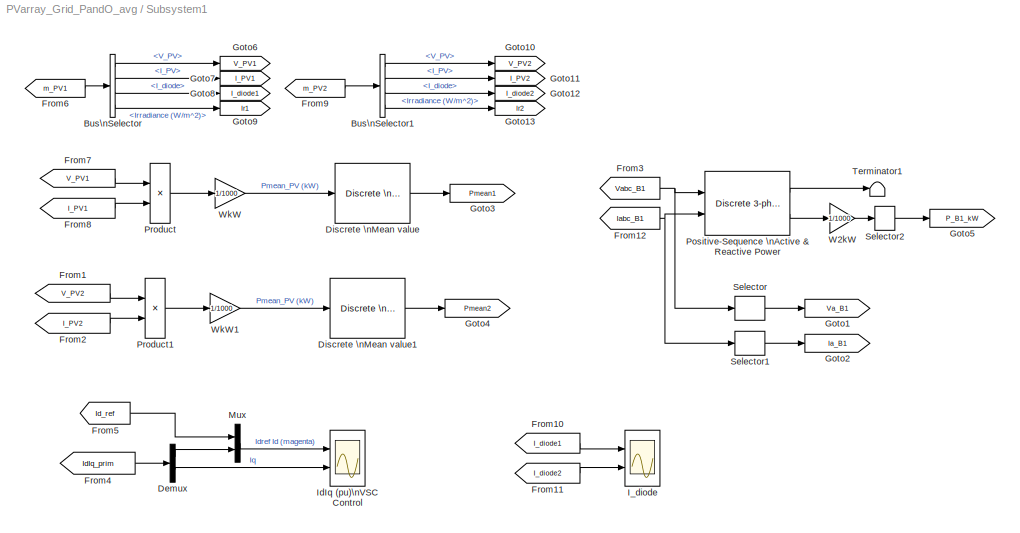
BLOCK [SubSystem] Subsystem1
  Ports = []
  RequestExecContextInheritance = off
  SID = 1636
BLOCK [BusSelector] Subsystem1/Bus\nSelector
  OutputAsBus = off
  OutputSignals = V_PV,I_PV,I_diode,Irradiance (W/m^2)
  Ports = [1, 4]
  SID = 2252
BLOCK [BusSelector] Subsystem1/Bus\nSelector1
  OutputAsBus = off
  OutputSignals = V_PV,I_PV,I_diode,Irradiance (W/m^2)
  Ports = [1, 4]
  SID = 2253
BLOCK [Demux] Subsystem1/Demux
  DisplayOption = bar
  Outputs = 2
  Ports = [1, 2]
  SID = 1637
BLOCK [Reference] Subsystem1/Discrete \nMean value  REF=powerlib_extras/Discrete\nMeasurements/Discrete \nMean value
  Freq = 60
  Ports = [1, 1]
  SID = 1727
  SourceBlock = powerlib_extras/Discrete\nMeasurements/Discrete \nMean value
  SourceProductBaseCode = PS
  SourceProductName = Simscape Electrical
  SourceType = Discrete Mean value
  Ts = Ts_Control
  Vinit = 0
BLOCK [Reference] Subsystem1/Discrete \nMean value1  REF=powerlib_extras/Discrete\nMeasurements/Discrete \nMean value
  Freq = 60
  Ports = [1, 1]
  SID = 1771
  SourceBlock = powerlib_extras/Discrete\nMeasurements/Discrete \nMean value
  SourceProductBaseCode = PS
  SourceProductName = Simscape Electrical
  SourceType = Discrete Mean value
  Ts = Ts_Control
  Vinit = 0
BLOCK [From] Subsystem1/From1
  GotoTag = V_PV2
  SID = 1772
  TagVisibility = global
BLOCK [From] Subsystem1/From10
  CloseFcn = tagdialog Close
  GotoTag = I_diode1
  SID = 1950
  TagVisibility = global
BLOCK [From] Subsystem1/From11
  CloseFcn = tagdialog Close
  GotoTag = I_diode2
  SID = 1951
  TagVisibility = global
BLOCK [From] Subsystem1/From12
  CloseFcn = tagdialog Close
  GotoTag = Iabc_B1
  SID = 1638
  TagVisibility = global
BLOCK [From] Subsystem1/From2
  GotoTag = I_PV2
  SID = 1773
  TagVisibility = global
BLOCK [From] Subsystem1/From3
  CloseFcn = tagdialog Close
  GotoTag = Vabc_B1
  SID = 1639
  TagVisibility = global
BLOCK [From] Subsystem1/From4
  CloseFcn = tagdialog Close
  GotoTag = IdIq_prim
  SID = 1640
  TagVisibility = global
BLOCK [From] Subsystem1/From5
  CloseFcn = tagdialog Close
  GotoTag = Id_ref
  SID = 1641
  TagVisibility = global
BLOCK [From] Subsystem1/From6
  GotoTag = m_PV1
  SID = 1936
  TagVisibility = global
BLOCK [From] Subsystem1/From7
  GotoTag = V_PV1
  SID = 1728
  TagVisibility = global
BLOCK [From] Subsystem1/From8
  GotoTag = I_PV1
  SID = 1729
  TagVisibility = global
BLOCK [From] Subsystem1/From9
  GotoTag = m_PV2
  SID = 1948
  TagVisibility = global
BLOCK [Goto] Subsystem1/Goto1
  GotoTag = Va_B1
  SID = 1642
  TagVisibility = global
BLOCK [Goto] Subsystem1/Goto10
  GotoTag = V_PV2
  SID = 1944
  TagVisibility = global
BLOCK [Goto] Subsystem1/Goto11
  GotoTag = I_PV2
  SID = 1945
  TagVisibility = global
BLOCK [Goto] Subsystem1/Goto12
  GotoTag = I_diode2
  SID = 1946
  TagVisibility = global
BLOCK [Goto] Subsystem1/Goto13
  GotoTag = Ir2
  SID = 1947
  TagVisibility = global
BLOCK [Goto] Subsystem1/Goto2
  GotoTag = Ia_B1
  SID = 1643
  TagVisibility = global
BLOCK [Goto] Subsystem1/Goto3
  GotoTag = Pmean1
  SID = 1734
  TagVisibility = global
BLOCK [Goto] Subsystem1/Goto4
  GotoTag = Pmean2
  SID = 1774
  TagVisibility = global
BLOCK [Goto] Subsystem1/Goto5
  GotoTag = P_B1_kW
  SID = 1644
  TagVisibility = global
BLOCK [Goto] Subsystem1/Goto6
  GotoTag = V_PV1
  SID = 1939
  TagVisibility = global
BLOCK [Goto] Subsystem1/Goto7
  GotoTag = I_PV1
  SID = 1940
  TagVisibility = global
BLOCK [Goto] Subsystem1/Goto8
  GotoTag = I_diode1
  SID = 1941
  TagVisibility = global
BLOCK [Goto] Subsystem1/Goto9
  GotoTag = Ir1
  SID = 1942
  TagVisibility = global
BLOCK [Scope] Subsystem1/I_diode
  Floating = off
  NumInputPorts = 2
  Ports = [2]
  SID = 1949
  ScopeSpecificationString = C++SS(StrPVP('Location','[467, 215, 1075, 751]'),StrPVP('Open','off'),StrPVP('ZoomMode','xonly'),MxPVP('AxesTitles',54,'struct(''axes1'',''%<SignalLabel>'',''axes2'',''%<SignalLabel>'')'),StrPVP('ShowLegends','off'),StrPVP('TimeRange','2'),StrPVP('YMin','-0.5~-0.5'),StrPVP('YMax','1.5~1.5'),StrPVP('SaveName','ScopeData3'),StrPVP('DataFormat','StructureWithTime'),StrPVP('LimitDataPoints','off'),Str...<+97ch>
BLOCK [Scope] Subsystem1/IdIq (pu)\nVSC Control
  Floating = off
  NumInputPorts = 2
  Ports = [2]
  SID = 1645
  ScopeSpecificationString = C++SS(StrPVP('Location','[467, 215, 1075, 751]'),StrPVP('Open','off'),StrPVP('ZoomMode','xonly'),MxPVP('AxesTitles',54,'struct(''axes1'',''%<SignalLabel>'',''axes2'',''%<SignalLabel>'')'),StrPVP('ShowLegends','off'),StrPVP('TimeRange','2'),StrPVP('YMin','-0.5~-0.5'),StrPVP('YMax','1.5~1.5'),StrPVP('SaveName','ScopeData8'),StrPVP('DataFormat','StructureWithTime'),StrPVP('LimitDataPoints','off'),Str...<+97ch>
BLOCK [Mux] Subsystem1/Mux
  DisplayOption = bar
  Inputs = 2
  Ports = [2, 1]
  SID = 1646
BLOCK [Reference] Subsystem1/Positive-Sequence \nActive & Reactive Power  REF=powerlib_extras/Discrete\nMeasurements/Discrete 3-phase \nPositive-Sequence \nActive & Reactive Power
  Freq = 60
  Par_Iinit = [0 0]
  Par_Vinit = [0 0]
  Ports = [2, 2]
  SID = 1647
  SourceBlock = powerlib_extras/Discrete\nMeasurements/Discrete 3-phase \nPositive-Sequence \nActive & Reactive Power
  SourceProductBaseCode = PS
  SourceProductName = Simscape Electrical
  SourceType = Discrete 3-phase Positive-Sequence Active & Reactive Power
  Ts = Ts_Control
BLOCK [Product] Subsystem1/Product
  InputSameDT = off
  OutDataTypeStr = Inherit: Inherit via internal rule
  Ports = [2, 1]
  SID = 1730
  SaturateOnIntegerOverflow = off
BLOCK [Product] Subsystem1/Product1
  InputSameDT = off
  OutDataTypeStr = Inherit: Inherit via internal rule
  Ports = [2, 1]
  SID = 1775
  SaturateOnIntegerOverflow = off
BLOCK [Selector] Subsystem1/Selector
  IndexOptions = Index vector (dialog)
  Indices = [1]
  InputPortWidth = 3
  OutputSizes = 1
  Ports = [1, 1]
  SID = 1648
BLOCK [Selector] Subsystem1/Selector1
  IndexOptions = Index vector (dialog)
  Indices = [1]
  InputPortWidth = 3
  OutputSizes = 1
  Ports = [1, 1]
  SID = 1649
BLOCK [Selector] Subsystem1/Selector2
  IndexOptions = Index vector (dialog)
  Indices = [1]
  InputPortWidth = 2
  OutputSizes = 1
  Ports = [1, 1]
  SID = 1650
BLOCK [Terminator] Subsystem1/Terminator1
  SID = 1651
BLOCK [Gain] Subsystem1/W2kW
  Gain = 1/1000
  OutDataTypeStr = Inherit: Inherit via internal rule
  ParamDataTypeStr = Inherit: Inherit via internal rule
  SID = 1652
  SaturateOnIntegerOverflow = off
BLOCK [Gain] Subsystem1/WkW
  Gain = 1/1000
  OutDataTypeStr = Inherit: Inherit via internal rule
  ParamDataTypeStr = Inherit: Inherit via internal rule
  SID = 1731
  SaturateOnIntegerOverflow = off
BLOCK [Gain] Subsystem1/WkW1
  Gain = 1/1000
  OutDataTypeStr = Inherit: Inherit via internal rule
  ParamDataTypeStr = Inherit: Inherit via internal rule
  SID = 1776
  SaturateOnIntegerOverflow = off
BLOCK [SubSystem] Subsystem2
  Ports = [0, 2]
  RequestExecContextInheritance = off
  SID = 1187
BLOCK [Reference] Subsystem2/Discrete \nMean value  REF=powerlib_extras/Discrete\nMeasurements/Discrete \nMean value
  Freq = 60
  Ports = [1, 1]
  SID = 1189
  SourceBlock = powerlib_extras/Discrete\nMeasurements/Discrete \nMean value
  SourceProductBaseCode = PS
  SourceProductName = Simscape Electrical
  SourceType = Discrete Mean value
  Ts = Ts_Control
  Vinit = 0
BLOCK [From] Subsystem2/From7
  CloseFcn = tagdialog Close
  GotoTag = Vdc
  SID = 1182
  TagVisibility = global
BLOCK [From] Subsystem2/From8
  CloseFcn = tagdialog Close
  GotoTag = Vdc_ref
  SID = 1183
  TagVisibility = global
BLOCK [Mux] Subsystem2/Mux1
  DisplayOption = bar
  Inputs = 2
  Ports = [2, 1]
  SID = 1184
BLOCK [Outport] Subsystem2/Vm
  IconDisplay = Port number
  SID = 1190
BLOCK [Outport] Subsystem2/VrVm
  IconDisplay = Port number
  Port = 2
  SID = 1188
BLOCK [Scope] VSC
  Floating = off
  NumInputPorts = 2
  Ports = [2]
  SID = 1004
  ScopeSpecificationString = C++SS(StrPVP('Location','[262, 94, 1095, 904]'),StrPVP('Open','off'),StrPVP('ZoomMode','yonly'),MxPVP('AxesTitles',54,'struct(''axes1'',''%<SignalLabel>'',''axes2'',''%<SignalLabel>'')'),StrPVP('ShowLegends','off'),StrPVP('TimeRange','2'),StrPVP('YMin','495.9140374942845~0.5'),StrPVP('YMax','502.4106081390032~1'),StrPVP('SaveName','ScopeData5'),StrPVP('DataFormat','StructureWithTime'),StrPVP('Limi...<+120ch>
BLOCK [SubSystem] VSC Control1
  Ports = [3, 1]
  RequestExecContextInheritance = off
  SID = 1556
BLOCK [SubSystem] VSC Control1/Current Regulator
  Ports = [3, 1]
  RequestExecContextInheritance = off
  SID = 1560
BLOCK [Sum] VSC Control1/Current Regulator/Add1
  InputSameDT = off
  Inputs = ++-
  OutDataTypeStr = Inherit: Inherit via internal rule
  Ports = [3, 1]
  SID = 1564
  SaturateOnIntegerOverflow = off
BLOCK [Sum] VSC Control1/Current Regulator/Add2
  InputSameDT = off
  OutDataTypeStr = Inherit: Inherit via internal rule
  Ports = [2, 1]
  SID = 1565
  SaturateOnIntegerOverflow = off
BLOCK [Sum] VSC Control1/Current Regulator/Add3
  InputSameDT = off
  Inputs = +++
  OutDataTypeStr = Inherit: Inherit via internal rule
  Ports = [3, 1]
  SID = 1566
  SaturateOnIntegerOverflow = off
BLOCK [Demux] VSC Control1/Current Regulator/Demux
  DisplayOption = bar
  Outputs = 2
  Ports = [1, 2]
  SID = 1567
BLOCK [Demux] VSC Control1/Current Regulator/Demux1
  DisplayOption = bar
  Outputs = 2
  Ports = [1, 2]
  SID = 1568
BLOCK [Inport] VSC Control1/Current Regulator/IdIq_mes
  IconDisplay = Port number
  Port = 2
  PortDimensions = 2
  SID = 1562
BLOCK [Inport] VSC Control1/Current Regulator/IdIq_ref
  IconDisplay = Port number
  Port = 3
  PortDimensions = 2
  SID = 1563
BLOCK [Gain] VSC Control1/Current Regulator/Ltot_pu1
  Gain = Ltot_pu
  SID = 1569
BLOCK [Gain] VSC Control1/Current Regulator/Ltot_pu2
  Gain = Ltot_pu
  SID = 1570
BLOCK [Mux] VSC Control1/Current Regulator/Mux
  DisplayOption = bar
  Inputs = 2
  Ports = [2, 1]
  SID = 1571
BLOCK [Reference] VSC Control1/Current Regulator/PI  REF=simulink/Continuous/PID Controller
  AWVariant = Passthrough
  AntiWindupMode = none
  Controller = PI
  ControllerParametersSource = internal
  D = 0
  DGainOutDataTypeStr = Inherit: Inherit via internal rule
  DOutMax = []
  DOutMin = []
  DParamDataTypeStr = Inherit: Inherit via internal rule
  DParamMax = []
  DParamMin = []
  DProdOutDataTypeStr = Inherit: Inherit via internal rule
  DVariant = Disabled
  DerivativeFilterVariant = Disabled
  DifferentiatorICPrevScaledInput = 0
  DifferentiatorOutDataTypeStr = Inherit: Inherit via internal rule
  DifferentiatorOutMax = []
  DifferentiatorOutMin = []
  DivideOutDataTypeStr = Inherit: Inherit via internal rule
  DivideOutMax = []
  DivideOutMin = []
  ExternalReset = none
  ExternalResetVariant = Disabled
  FdbkBlocksVariant = Forward
  FilterContinuousStateAttributes = ''
  FilterDiffDenAccumDataTypeStr = Inherit: Inherit via internal rule
  FilterDiffDenProductOutputDataTypeStr = Inherit: Inherit via internal rule
  FilterDiffNumAccumDataTypeStr = Inherit: Inherit via internal rule
  FilterDiffNumProductOutputDataTypeStr = Inherit: Inherit via internal rule
  FilterDiffOutCoefDataTypeStr = Inherit: Inherit via internal rule
  FilterDiffOutCoefMax = []
  FilterDiffOutCoefMin = []
  FilterICVariant = Disabled
  FilterMethod = Forward Euler
  FilterOutDataTypeStr = Inherit: Inherit via internal rule
  FilterOutMax = []
  FilterOutMin = []
  FilterRTWStateStorageClass = Auto
  FilterStateMustResolveToSignalObject = off
  Form = Parallel
  I = Ki_Ireg
  IGainOutDataTypeStr = Inherit: Inherit via internal rule
  IOutMax = []
  IOutMin = []
  IParamDataTypeStr = Inherit: Inherit via internal rule
  IParamMax = []
  IParamMin = []
  IProdOutDataTypeStr = Inherit: Inherit via internal rule
  IVariant = InternalParameters
  IdealPFdbkVariant = Disabled
  IdealPVariant = Disabled
  IgnoreLimit = off
  InitialConditionForFilter = 0
  InitialConditionForIntegrator = 0
  InitialConditionSetting = Auto
  InitialConditionSource = internal
  IntegratorContinuousStateAttributes = ''
  IntegratorICVariant = InternalICs
  IntegratorMethod = Forward Euler
  IntegratorOutDataTypeStr = Inherit: Inherit via internal rule
  IntegratorOutMax = []
  IntegratorOutMin = []
  IntegratorRTWStateStorageClass = Auto
  IntegratorStateMustResolveToSignalObject = off
  IntegratorVariant = Discrete
  Kb = 1
  KbOutDataTypeStr = Inherit: Inherit via internal rule
  KbOutMax = []
  KbOutMin = []
  KbParamDataTypeStr = Inherit: Inherit via internal rule
  KbParamMax = []
  KbParamMin = []
  Kt = 1
  KtOutDataTypeStr = Inherit: Inherit via internal rule
  KtOutMax = []
  KtOutMin = []
  KtParamDataTypeStr = Inherit: Inherit via internal rule
  KtParamMax = []
  KtParamMin = []
  LimitOutput = on
  LinearizeAsGain = off
  LockScale = off
  LowerSaturationLimit = -2
  N = 100
  NCopyVariant = Disabled_SignalSpec
  NGainOutDataTypeStr = Inherit: Inherit via internal rule
  NOutMax = []
  NOutMin = []
  NParamDataTypeStr = Inherit: Inherit via internal rule
  NParamMax = []
  NParamMin = []
  NProdOutDataTypeStr = Inherit: Inherit via internal rule
  NVariant = Disabled
  P = Kp_Ireg
  PCopyVariant = Disabled
  PGainOutDataTypeStr = Inherit: Inherit via internal rule
  POutMax = []
  POutMin = []
  PParamDataTypeStr = Inherit: Inherit via internal rule
  PParamMax = []
  PParamMin = []
  PProdOutDataTypeStr = Inherit: Inherit via internal rule
  ParallelPVariant = InternalParameters
  Ports = [1, 1]
  ReciprocalOutDataTypeStr = Inherit: Inherit via internal rule
  ReciprocalOutMax = []
  ReciprocalOutMin = []
  RndMeth = Floor
  SID = 1572
  SampleTime = Ts
  SatFdbkVariant = Disabled
  SatVariant = Enabled
  SaturateOnIntegerOverflow = off
  SaturationOutDataTypeStr = Inherit: Same as input
  SaturationOutMax = []
  SaturationOutMin = []
  SourceBlock = simulink/Continuous/PID Controller
  SourceProductBaseCode = SL
  SourceProductName = Simulink
  SourceType = PID 1dof
  SumAccumDataTypeStr = Inherit: Inherit via internal rule
  SumDAccumDataTypeStr = Inherit: Inherit via internal rule
  SumDOutDataTypeStr = Inherit: Inherit via internal rule
  SumDOutMax = []
  SumDOutMin = []
  SumDenAccumDataTypeStr = Inherit: Inherit via internal rule
  SumDenOutDataTypeStr = Inherit: Inherit via internal rule
  SumDenOutMax = []
  SumDenOutMin = []
  SumFdbkVariant = Disabled
  SumI1AccumDataTypeStr = Inherit: Inherit via internal rule
  SumI1OutDataTypeStr = Inherit: Inherit via internal rule
  SumI1OutMax = []
  SumI1OutMin = []
  SumI2AccumDataTypeStr = Inherit: Inherit via internal rule
  SumI2OutDataTypeStr = Inherit: Inherit via internal rule
  SumI2OutMax = []
  SumI2OutMin = []
  SumI3AccumDataTypeStr = Inherit: Inherit via internal rule
  SumI3OutDataTypeStr = Inherit: Inherit via internal rule
  SumI3OutMax = []
  SumI3OutMin = []
  SumI4AccumDataTypeStr = Inherit: Inherit via internal rule
  SumI4OutDataTypeStr = Inherit: Inherit via internal rule
  SumI4OutMax = []
  SumI4OutMin = []
  SumNumAccumDataTypeStr = Inherit: Inherit via internal rule
  SumNumOutDataTypeStr = Inherit: Inherit via internal rule
  SumNumOutMax = []
  SumNumOutMin = []
  SumOutDataTypeStr = Inherit: Inherit via internal rule
  SumOutMax = []
  SumOutMin = []
  SumVariant = Sum_PI
  TRSumVariant = Passthrough
  TRVariant = Disabled
  TimeDomain = Discrete-time
  TrackingMode = off
  TunerSelectOption = Transfer Function Based (PID Tuner App)
  UpperSaturationLimit = 2
  UseFilter = on
  ZeroCross = on
BLOCK [Gain] VSC Control1/Current Regulator/Rtot_pu1
  Gain = Rtot_pu
  SID = 1574
BLOCK [Gain] VSC Control1/Current Regulator/Rtot_pu5
  Gain = Rtot_pu
  SID = 1575
BLOCK [Saturate] VSC Control1/Current Regulator/Saturation
  InputPortMap = u0
  LowerLimit = -2
  Ports = [1, 1]
  SID = 1576
  UpperLimit = 2
BLOCK [Sum] VSC Control1/Current Regulator/Sum
  IconShape = round
  InputSameDT = off
  Inputs = |-+
  OutDataTypeStr = Inherit: Inherit via internal rule
  Ports = [2, 1]
  SID = 1577
  SaturateOnIntegerOverflow = off
BLOCK [Outport] VSC Control1/Current Regulator/VdVq_conv
  IconDisplay = Port number
  SID = 1578
BLOCK [Inport] VSC Control1/Current Regulator/VdVq_mes
  IconDisplay = Port number
  PortDimensions = 2
  SID = 1561
BLOCK [Inport] VSC Control1/Iabc_prim
  IconDisplay = Port number
  Port = 2
  PortDimensions = 3
  SID = 1558
BLOCK [Constant] VSC Control1/Iq_ref
  SID = 1579
  Value = 0
BLOCK [Mux] VSC Control1/Mux
  DisplayOption = bar
  Inputs = 2
  Ports = [2, 1]
  SID = 1580
BLOCK [SubSystem] VSC Control1/PLL & Measurements
  Ports = [2, 3]
  RequestExecContextInheritance = off
  SID = 1581
BLOCK [Goto] VSC Control1/PLL & Measurements/Goto3
  GotoTag = IdIq_prim
  SID = 1584
  TagVisibility = global
BLOCK [Inport] VSC Control1/PLL & Measurements/Iabc_prim
  IconDisplay = Port number
  Port = 2
  SID = 1583
BLOCK [Outport] VSC Control1/PLL & Measurements/IdIq_prim
  IconDisplay = Port number
  Port = 3
  SID = 1595
BLOCK [Reference] VSC Control1/PLL & Measurements/PLL  REF=powerlib_extras/Discrete \nControl Blocks/Discrete\n3-phase PLL
  AGC = off
  Fmin = 45
  ParK = [60 1400]
  Par_Init = [-0.57  Fnom]
  Ports = [1, 3]
  SID = 1585
  SourceBlock = powerlib_extras/Discrete \nControl Blocks/Discrete\n3-phase PLL
  SourceProductBaseCode = PS
  SourceProductName = Simscape Electrical
  SourceType = Discrete 3-phase PLL
  Ts = Ts
BLOCK [Selector] VSC Control1/PLL & Measurements/Selector1
  IndexOptions = Index vector (dialog)
  Indices = [1 2]
  InputPortWidth = 3
  OutputSizes = 1
  Ports = [1, 1]
  SID = 1586
BLOCK [Selector] VSC Control1/PLL & Measurements/Selector2
  IndexOptions = Index vector (dialog)
  Indices = [1 2]
  InputPortWidth = 3
  OutputSizes = 1
  Ports = [1, 1]
  SID = 1587
BLOCK [Terminator] VSC Control1/PLL & Measurements/Terminator
  SID = 1588
BLOCK [Gain] VSC Control1/PLL & Measurements/V->pu
  Gain = 1/(Vnom_prim*sqrt(2)/sqrt(3))
  SID = 1589
BLOCK [Gain] VSC Control1/PLL & Measurements/V->pu1
  Gain = Vnom_prim*sqrt(3)/Pnom/sqrt(2)
  SID = 1590
BLOCK [Inport] VSC Control1/PLL & Measurements/Vabc_prim
  IconDisplay = Port number
  SID = 1582
BLOCK [Outport] VSC Control1/PLL & Measurements/VdVq_prim
  IconDisplay = Port number
  Port = 2
  SID = 1594
BLOCK [Reference] VSC Control1/PLL & Measurements/abc_to_dq0\nTransformation1  REF=powerlib_extras/Measurements/abc_to_dq0\nTransformation
  Ports = [2, 1]
  SID = 1591
  SourceBlock = powerlib_extras/Measurements/abc_to_dq0\nTransformation
  SourceProductBaseCode = PS
  SourceProductName = Simscape Electrical
  SourceType = abc to dq0 Transformation
BLOCK [Reference] VSC Control1/PLL & Measurements/abc_to_dq0\nTransformation2  REF=powerlib_extras/Measurements/abc_to_dq0\nTransformation
  Ports = [2, 1]
  SID = 1592
  SourceBlock = powerlib_extras/Measurements/abc_to_dq0\nTransformation
  SourceProductBaseCode = PS
  SourceProductName = Simscape Electrical
  SourceType = abc to dq0 Transformation
BLOCK [Outport] VSC Control1/PLL & Measurements/wt
  IconDisplay = Port number
  SID = 1593
BLOCK [SubSystem] VSC Control1/Uabc_ref Generation \nmax (m) = 1
  Ports = [2, 1]
  RequestExecContextInheritance = off
  SID = 1596
BLOCK [Sum] VSC Control1/Uabc_ref Generation \nmax (m) = 1/Add1
  InputSameDT = off
  Inputs = ++++
  OutDataTypeStr = Inherit: Inherit via internal rule
  Ports = [4, 1]
  SID = 1599
  SaturateOnIntegerOverflow = off
BLOCK [Sum] VSC Control1/Uabc_ref Generation \nmax (m) = 1/Add2
  InputSameDT = off
  OutDataTypeStr = Inherit: Inherit via internal rule
  Ports = [2, 1]
  SID = 1600
  SaturateOnIntegerOverflow = off
BLOCK [ComplexToMagnitudeAngle] VSC Control1/Uabc_ref Generation \nmax (m) = 1/Complex to\nMagnitude-Angle
  Ports = [1, 2]
  SID = 1601
BLOCK [Constant] VSC Control1/Uabc_ref Generation \nmax (m) = 1/Constant
  SID = 1602
  Value = -pi/6
BLOCK [Constant] VSC Control1/Uabc_ref Generation \nmax (m) = 1/Constant1
  SID = 1603
  Value = Vnom_dc
BLOCK [Constant] VSC Control1/Uabc_ref Generation \nmax (m) = 1/Constant2
  SID = 1604
  Value = [ 0  -2*pi/3  2*pi/3  ]
BLOCK [Constant] VSC Control1/Uabc_ref Generation \nmax (m) = 1/Constant3
  SID = 1605
  Value = Vnom_sec*sqrt(2)/sqrt(3)
BLOCK [Constant] VSC Control1/Uabc_ref Generation \nmax (m) = 1/Constant4
  SID = 1606
  Value = Ts*Fnom*(2*pi)
BLOCK [Demux] VSC Control1/Uabc_ref Generation \nmax (m) = 1/Demux1
  DisplayOption = bar
  Outputs = 2
  Ports = [1, 2]
  SID = 1607
BLOCK [Gain] VSC Control1/Uabc_ref Generation \nmax (m) = 1/Gain1
  Gain = 1/2
  OutDataTypeStr = Inherit: Inherit via internal rule
  ParamDataTypeStr = Inherit: Inherit via internal rule
  SID = 1608
  SaturateOnIntegerOverflow = off
BLOCK [Goto] VSC Control1/Uabc_ref Generation \nmax (m) = 1/Goto1
  GotoTag = m
  SID = 1609
  TagVisibility = global
BLOCK [Product] VSC Control1/Uabc_ref Generation \nmax (m) = 1/Product
  InputSameDT = off
  Inputs = */
  OutDataTypeStr = Inherit: Inherit via internal rule
  Ports = [2, 1]
  SID = 1610
  SaturateOnIntegerOverflow = off
BLOCK [Product] VSC Control1/Uabc_ref Generation \nmax (m) = 1/Product1
  InputSameDT = off
  Inputs = */
  OutDataTypeStr = Inherit: Inherit via internal rule
  Ports = [2, 1]
  SID = 1611
  SaturateOnIntegerOverflow = off
BLOCK [Product] VSC Control1/Uabc_ref Generation \nmax (m) = 1/Product2
  InputSameDT = off
  Inputs = **
  OutDataTypeStr = Inherit: Inherit via internal rule
  Ports = [2, 1]
  SID = 1612
  SaturateOnIntegerOverflow = off
BLOCK [RealImagToComplex] VSC Control1/Uabc_ref Generation \nmax (m) = 1/Real-Imag to\nComplex
  Ports = [2, 1]
  SID = 1613
BLOCK [Saturate] VSC Control1/Uabc_ref Generation \nmax (m) = 1/Saturation
  InputPortMap = u0
  LowerLimit = 0
  Ports = [1, 1]
  SID = 1614
  UpperLimit = 1
BLOCK [Trigonometry] VSC Control1/Uabc_ref Generation \nmax (m) = 1/Trigonometric\nFunction
  Ports = [1, 1]
  SID = 1615
BLOCK [Outport] VSC Control1/Uabc_ref Generation \nmax (m) = 1/Uabc_ref
  IconDisplay = Port number
  SID = 1616
BLOCK [Inport] VSC Control1/Uabc_ref Generation \nmax (m) = 1/VdVq_conv
  IconDisplay = Port number
  Port = 2
  SID = 1598
BLOCK [Inport] VSC Control1/Uabc_ref Generation \nmax (m) = 1/wt
  IconDisplay = Port number
  SID = 1597
BLOCK [UnitDelay] VSC Control1/Unit Delay
  HasFrameUpgradeWarning = on
  SID = 1617
  SampleTime = Ts_Control
BLOCK [Outport] VSC Control1/Uref
  IconDisplay = Port number
  SID = 1628
BLOCK [SubSystem] VSC Control1/VDC Regulator
  Ports = [2, 1]
  RequestExecContextInheritance = off
  SID = 1618
BLOCK [Goto] VSC Control1/VDC Regulator/Goto1
  GotoTag = Vdc_ref
  SID = 1621
  TagVisibility = global
BLOCK [Goto] VSC Control1/VDC Regulator/Goto4
  GotoTag = Id_ref
  SID = 1622
  TagVisibility = global
BLOCK [Outport] VSC Control1/VDC Regulator/Id_ref
  IconDisplay = Port number
  InitialOutput = 0
  SID = 1626
  SampleTime = Ts
BLOCK [Reference] VSC Control1/VDC Regulator/PI  REF=simulink/Continuous/PID Controller
  AWVariant = Passthrough
  AntiWindupMode = none
  Controller = PI
  ControllerParametersSource = internal
  D = 0
  DGainOutDataTypeStr = Inherit: Inherit via internal rule
  DOutMax = []
  DOutMin = []
  DParamDataTypeStr = Inherit: Inherit via internal rule
  DParamMax = []
  DParamMin = []
  DProdOutDataTypeStr = Inherit: Inherit via internal rule
  DVariant = Disabled
  DerivativeFilterVariant = Disabled
  DifferentiatorICPrevScaledInput = 0
  DifferentiatorOutDataTypeStr = Inherit: Inherit via internal rule
  DifferentiatorOutMax = []
  DifferentiatorOutMin = []
  DivideOutDataTypeStr = Inherit: Inherit via internal rule
  DivideOutMax = []
  DivideOutMin = []
  ExternalReset = none
  ExternalResetVariant = Disabled
  FdbkBlocksVariant = Forward
  FilterContinuousStateAttributes = ''
  FilterDiffDenAccumDataTypeStr = Inherit: Inherit via internal rule
  FilterDiffDenProductOutputDataTypeStr = Inherit: Inherit via internal rule
  FilterDiffNumAccumDataTypeStr = Inherit: Inherit via internal rule
  FilterDiffNumProductOutputDataTypeStr = Inherit: Inherit via internal rule
  FilterDiffOutCoefDataTypeStr = Inherit: Inherit via internal rule
  FilterDiffOutCoefMax = []
  FilterDiffOutCoefMin = []
  FilterICVariant = Disabled
  FilterMethod = Forward Euler
  FilterOutDataTypeStr = Inherit: Inherit via internal rule
  FilterOutMax = []
  FilterOutMin = []
  FilterRTWStateStorageClass = Auto
  FilterStateMustResolveToSignalObject = off
  Form = Parallel
  I = Ki_VDCreg
  IGainOutDataTypeStr = Inherit: Inherit via internal rule
  IOutMax = []
  IOutMin = []
  IParamDataTypeStr = Inherit: Inherit via internal rule
  IParamMax = []
  IParamMin = []
  IProdOutDataTypeStr = Inherit: Inherit via internal rule
  IVariant = InternalParameters
  IdealPFdbkVariant = Disabled
  IdealPVariant = Disabled
  IgnoreLimit = off
  InitialConditionForFilter = 0
  InitialConditionForIntegrator = 0
  InitialConditionSetting = Auto
  InitialConditionSource = internal
  IntegratorContinuousStateAttributes = ''
  IntegratorICVariant = InternalICs
  IntegratorMethod = Trapezoidal
  IntegratorOutDataTypeStr = Inherit: Inherit via internal rule
  IntegratorOutMax = []
  IntegratorOutMin = []
  IntegratorRTWStateStorageClass = Auto
  IntegratorStateMustResolveToSignalObject = off
  IntegratorVariant = Discrete
  Kb = 1
  KbOutDataTypeStr = Inherit: Inherit via internal rule
  KbOutMax = []
  KbOutMin = []
  KbParamDataTypeStr = Inherit: Inherit via internal rule
  KbParamMax = []
  KbParamMin = []
  Kt = 1
  KtOutDataTypeStr = Inherit: Inherit via internal rule
  KtOutMax = []
  KtOutMin = []
  KtParamDataTypeStr = Inherit: Inherit via internal rule
  KtParamMax = []
  KtParamMin = []
  LimitOutput = on
  LinearizeAsGain = off
  LockScale = off
  LowerSaturationLimit = -1.5
  N = 100
  NCopyVariant = Disabled_SignalSpec
  NGainOutDataTypeStr = Inherit: Inherit via internal rule
  NOutMax = []
  NOutMin = []
  NParamDataTypeStr = Inherit: Inherit via internal rule
  NParamMax = []
  NParamMin = []
  NProdOutDataTypeStr = Inherit: Inherit via internal rule
  NVariant = Disabled
  P = Kp_VDCreg
  PCopyVariant = Disabled
  PGainOutDataTypeStr = Inherit: Inherit via internal rule
  POutMax = []
  POutMin = []
  PParamDataTypeStr = Inherit: Inherit via internal rule
  PParamMax = []
  PParamMin = []
  PProdOutDataTypeStr = Inherit: Inherit via internal rule
  ParallelPVariant = InternalParameters
  Ports = [1, 1]
  ReciprocalOutDataTypeStr = Inherit: Inherit via internal rule
  ReciprocalOutMax = []
  ReciprocalOutMin = []
  RndMeth = Floor
  SID = 1623
  SampleTime = Ts
  SatFdbkVariant = Disabled
  SatVariant = Enabled
  SaturateOnIntegerOverflow = off
  SaturationOutDataTypeStr = Inherit: Same as input
  SaturationOutMax = []
  SaturationOutMin = []
  SourceBlock = simulink/Continuous/PID Controller
  SourceProductBaseCode = SL
  SourceProductName = Simulink
  SourceType = PID 1dof
  SumAccumDataTypeStr = Inherit: Inherit via internal rule
  SumDAccumDataTypeStr = Inherit: Inherit via internal rule
  SumDOutDataTypeStr = Inherit: Inherit via internal rule
  SumDOutMax = []
  SumDOutMin = []
  SumDenAccumDataTypeStr = Inherit: Inherit via internal rule
  SumDenOutDataTypeStr = Inherit: Inherit via internal rule
  SumDenOutMax = []
  SumDenOutMin = []
  SumFdbkVariant = Disabled
  SumI1AccumDataTypeStr = Inherit: Inherit via internal rule
  SumI1OutDataTypeStr = Inherit: Inherit via internal rule
  SumI1OutMax = []
  SumI1OutMin = []
  SumI2AccumDataTypeStr = Inherit: Inherit via internal rule
  SumI2OutDataTypeStr = Inherit: Inherit via internal rule
  SumI2OutMax = []
  SumI2OutMin = []
  SumI3AccumDataTypeStr = Inherit: Inherit via internal rule
  SumI3OutDataTypeStr = Inherit: Inherit via internal rule
  SumI3OutMax = []
  SumI3OutMin = []
  SumI4AccumDataTypeStr = Inherit: Inherit via internal rule
  SumI4OutDataTypeStr = Inherit: Inherit via internal rule
  SumI4OutMax = []
  SumI4OutMin = []
  SumNumAccumDataTypeStr = Inherit: Inherit via internal rule
  SumNumOutDataTypeStr = Inherit: Inherit via internal rule
  SumNumOutMax = []
  SumNumOutMin = []
  SumOutDataTypeStr = Inherit: Inherit via internal rule
  SumOutMax = []
  SumOutMin = []
  SumVariant = Sum_PI
  TRSumVariant = Passthrough
  TRVariant = Disabled
  TimeDomain = Discrete-time
  TrackingMode = off
  TunerSelectOption = Transfer Function Based (PID Tuner App)
  UpperSaturationLimit = 1.5
  UseFilter = on
  ZeroCross = on
BLOCK [Gain] VSC Control1/VDC Regulator/Rtot_pu3
  Gain = 1/Vnom_dc
  SID = 1624
BLOCK [Sum] VSC Control1/VDC Regulator/Sum
  IconShape = round
  InputSameDT = off
  Inputs = |+-
  OutDataTypeStr = Inherit: Inherit via internal rule
  Ports = [2, 1]
  SID = 1625
  SaturateOnIntegerOverflow = off
BLOCK [Inport] VSC Control1/VDC Regulator/Vdc_mes
  IconDisplay = Port number
  PortDimensions = 1
  SID = 1619
BLOCK [Inport] VSC Control1/VDC Regulator/Vdc_ref
  IconDisplay = Port number
  Port = 2
  PortDimensions = 1
  SID = 1620
BLOCK [Inport] VSC Control1/Vabc_prim
  IconDisplay = Port number
  PortDimensions = 3
  SID = 1557
BLOCK [Inport] VSC Control1/Vdc_mes
  IconDisplay = Port number
  Port = 3
  PortDimensions = 1
  SID = 1559
BLOCK [Constant] VSC Control1/Vdc_ref1
  SID = 1627
  Value = Vdc_ref
BLOCK [Reference] VSC\n(Average Model)  REF=powerlib/Power\nElectronics/Universal Bridge
  Arms = 3
  Device = Average-model based VSC
  ForwardVoltage = 0
  ForwardVoltages = [  0  0  ]
  GTOparameters = [ 10e-6 , 20e-6 ]
  IGBTparameters = [ 1e-6 , 2e-6 ]
  Lon = 0
  Measurements = None
  Measurements_2 = None
  Ports = [1, 0, 0, 0, 0, 3, 2]
  Ron = 1e-3
  SID = 1629
  SnubberCapacitance = inf
  SnubberResistance = 1e5
  SourceBlock = powerlib/Power\nElectronics/Universal Bridge
  SourceProductBaseCode = PS
  SourceProductName = Simscape Electrical
  SourceType = Universal Bridge
  converterType = Rectifier
BLOCK [Reference] Vdc   REF=powerlib/Measurements/Voltage Measurement
  AttributesFormatString = \\n
  OutputType = Magnitude
  PSBequivalent = 0
  PhasorSimulation = off
  Ports = [0, 1, 0, 0, 0, 2]
  SID = 602
  SourceBlock = powerlib/Measurements/Voltage Measurement
  SourceProductBaseCode = PS
  SourceProductName = Simscape Electrical
  SourceType = Voltage Measurement
  Tag = PoWeRsYsTeMmEaSuReMeNt
BLOCK [Display] Vdc Inverter
  Decimation = 100
  Format = bank
  Ports = [1]
  SID = 1170
BLOCK [Reference] powergui  REF=powerlib/powergui
  AutomaticDiscreteSolvers = off
  ContinueOnMaxIteration = off
  CurrentSourceSwitches = off
  DisableRonSwitches = off
  DisableSnubberDevices = off
  DisableVfSwitches = off
  DisplayEquations = off
  DisplayStyle = 1
  EnableUseOfTLC = off
  ErrMax = 1e-4
  ExternalGateDelay = off
  Frange = [0:2:500]
  FreqAxis = off
  FunctionMessages = off
  HookPort = off
  Interpol = off
  Iterations = 50
  MaxFrequency = 1000
  NonlinearTolerance = 1e-4
  Pbase = 100e6
  Ports = []
  Priority = 1
  ResistiveCurrentMeasurement = off
  RestoreLinks = warning
  RmsSteady = 1
  SID = 9
  SPID = off
  SampleTime = Ts_Power
  ShowGrid = off
  SolverType = Tustin
  SourceBlock = powerlib/powergui
  SourceProductBaseCode = PS
  SourceProductName = Simscape Electrical
  SourceType = PSB option menu block
  StartTime = 0.0
  SwTol = 0
  Ts = 0
  UnitsV = kV
  UnitsW = MW
  Xlog = on
  Ylog = off
  ZoomFFT = on
  buscounter = 0
  cycles = 1
  display = off
  echomessages = off
  frequency = 60
  frequencyindice = 0
  frequencyindicesteady = 1
  fundamental = 60
  methode = off
  nMaxIteration = 100
  save = off
  structure = 0
  variable = ZData
  x0status = blocks
ANNOTATION (root): Array1: 100-kW PV Array Maximum Power \n330 * SunPower SPR-305 (Nser=5 Npar=66) \n \n
ANNOTATION (root): Array2: 100-kW PV Array Maximum Power\n488 * Kyocera-KD205GX-LP (Nser=8 Npar=61 \n\n
ANNOTATION (root): Utility Grid
ANNOTATION (root): (For information on this demo, refer to the PVarray_demos_help.pdf document )
ANNOTATION (root): 2 MPPT Controllers using \" Perturb & Observe \" technique
ANNOTATION (root): 200-kW Grid-Connected PV Array \n(Average Model)
ANNOTATION (root): Pmpp @ 1000 W/m2 = 100.1 kW @ 212.8 V\nPmpp @ 250 W/m2 = 22.9 kW @ 197.4 V
ANNOTATION (root): Pmpp @ 1000 W/m2 = 100.7 kW @ 273.5V\nPmpp @ 250 W/m2 = 22.6 kW @ 252.4V
ANNOTATION (root): Ts_Power=50 us\nTs_Control=100 us
ANNOTATION Boost Converter 1\n(Average Model): P=Va*Ia=Vdc*Idc \nIdc=Va*Ia/Vdc
ANNOTATION Boost Converter 1\n(Average Model)/scaling1: Shifting from ]0 to 1[ to a ]-1 to 1[ scale
ANNOTATION Boost Converter 2\nAverage Model): P=Va*Ia=Vdc*Idc \nIdc=Va*Ia/Vdc
ANNOTATION Boost Converter 2\nAverage Model)/scaling1: Shifting from ]0 to 1[ to a ]-1 to 1[ scale
ANNOTATION MPPT \nParameters: (D = Boost converter duty cycle)
ANNOTATION MPPT \nParameters: Increment value used to increase/decrease (DeltaD)
ANNOTATION MPPT \nParameters: Initial value for D output (Dinit)
ANNOTATION MPPT \nParameters: Lower limit for D (Dmax)
ANNOTATION MPPT \nParameters: Parameters for Perturb and Observe Algorithm:
ANNOTATION MPPT \nParameters: Upper limit for D (Dmax)
ANNOTATION MPPT \nParameters2: (D = Boost converter duty cycle)
ANNOTATION MPPT \nParameters2: Increment value used to increase/decrease (DeltaD)
ANNOTATION MPPT \nParameters2: Initial value for D output (Dinit)
ANNOTATION MPPT \nParameters2: Lower limit for D (Dmax)
ANNOTATION MPPT \nParameters2: Parameters for Perturb and Observe Algorithm:
ANNOTATION MPPT \nParameters2: Upper limit for D (Dmax)
ANNOTATION PV Array 1: Diode characteristic\n Id=Isat*[exp(Vd/VT) -1] \n\nwhere:\n Id = diode cuurent (A)\n Vd = diode voltage (V)\n Isat = diode saturation current (A)\n VT = temperature voltage = k*T/q*Qd*Ncell*Nser\n\n T = cell temperature (K),\n k = Boltzman constant = 1.3806e-23 J.K^-1 \n q = electron charge = 1.6022e-19 C\n Qd = diode quality factor\n Ncell= number of series-connected cells per module\n Nser = num...<+42ch>
ANNOTATION PV Array 1/Diode: Id=Isat*[exp(Vd/Vt)-1]
ANNOTATION PV Array 2: Diode characteristic\n Id=Isat*[exp(Vd/VT) -1] \n\nwhere:\n Id = diode cuurent (A)\n Vd = diode voltage (V)\n Isat = diode saturation current (A)\n VT = temperature voltage = k*T/q*Qd*Ncell*Nser\n\n T = cell temperature (K),\n k = Boltzman constant = 1.3806e-23 J.K^-1 \n q = electron charge = 1.6022e-19 C\n Qd = diode quality factor\n Ncell= number of series-connected cells per module\n Nser = num...<+42ch>
ANNOTATION PV Array 2/Diode: Id=Isat*[exp(Vd/Vt)-1]
ANNOTATION VSC Control1: VSC Main Controller
ANNOTATION VSC Control1/Current Regulator: (Vd_prim - Vd_conv) ~= + Iq * Ltot
ANNOTATION VSC Control1/Current Regulator: (Vq_prim - Vq_conv) ~ = - Id * Ltot
ANNOTATION VSC Control1/Current Regulator: Current Regulator \n(with feedforward)
ANNOTATION VSC Control1/Current Regulator: For Ltot >> Rtot :
ANNOTATION VSC Control1/Current Regulator: Id positive --> The converter generates active power (\"Inverter mode\") = Active Power P positive
ANNOTATION VSC Control1/Current Regulator: Iq positive --> The converter absorbs reactive power (\"Inductive mode\") = Reactive Power Q negative
ANNOTATION VSC Control1/Current Regulator: Ltot = Lxfo + Lchoke \nRtot = Rxfo + Rchoke
ANNOTATION VSC Control1/Current Regulator: Sign Convention: Current going out of the converter = positive current
ANNOTATION VSC Control1/Current Regulator: Vd_mes + Id*R - Iq*L + deriv(Id)*L/wbase= Vd_conv
ANNOTATION VSC Control1/Current Regulator: Vq_mes + Id*L + Iq*R + deriv(Iq)*L/wbase= Vq_conv
ANNOTATION VSC Control1/Current Regulator: harmonic filter neglected
ANNOTATION VSC Control1/Uabc_ref Generation \nmax (m) = 1: (Correction for delai of Ts_Control)
ANNOTATION VSC Control1/Uabc_ref Generation \nmax (m) = 1: (Correction for transformer\n D1 connection)
LINE Boost Converter 1\n(Average Model)/Add2:1 -> Boost Converter 1\n(Average Model)/scaling1:1
LINE Boost Converter 1\n(Average Model)/Constant1:1 -> Boost Converter 1\n(Average Model)/Subtract3:2
LINE Boost Converter 1\n(Average Model)/Constant2:1 -> Boost Converter 1\n(Average Model)/Add2:1
LINE Boost Converter 1\n(Average Model)/Current Measurement:1 -> Boost Converter 1\n(Average Model)/Product3:2
LINE Boost Converter 1\n(Average Model)/D:1 -> Boost Converter 1\n(Average Model)/Add2:2
NET Boost Converter 1\n(Average Model)/Gain:1 -> Boost Converter 1\n(Average Model)/Mult:2, Boost Converter 1\n(Average Model)/Subtract1:2
LINE Boost Converter 1\n(Average Model)/Idc:1 -> Boost Converter 1\n(Average Model)/Controlled Current Source:1
LINE Boost Converter 1\n(Average Model)/Mult:1 -> Boost Converter 1\n(Average Model)/Subtract1:1
LINE Boost Converter 1\n(Average Model)/Prediction/Gain:1 -> Boost Converter 1\n(Average Model)/Prediction/Subtract2:1
NET Boost Converter 1\n(Average Model)/Prediction/In:1 -> Boost Converter 1\n(Average Model)/Prediction/Gain:1, Boost Converter 1\n(Average Model)/Prediction/prediction:1
LINE Boost Converter 1\n(Average Model)/Prediction/Subtract2:1 -> Boost Converter 1\n(Average Model)/Prediction/Out:1
LINE Boost Converter 1\n(Average Model)/Prediction/prediction:1 -> Boost Converter 1\n(Average Model)/Prediction/Subtract2:2
LINE Boost Converter 1\n(Average Model)/Prediction:1 -> Boost Converter 1\n(Average Model)/Subtract3:1
LINE Boost Converter 1\n(Average Model)/Product3:1 -> Boost Converter 1\n(Average Model)/Product5:1
LINE Boost Converter 1\n(Average Model)/Product5:1 -> Boost Converter 1\n(Average Model)/Idc:1
NET Boost Converter 1\n(Average Model)/Subtract1:1 -> Boost Converter 1\n(Average Model)/Controlled Voltage Source:1, Boost Converter 1\n(Average Model)/Product3:1
LINE Boost Converter 1\n(Average Model)/Subtract3:1 -> Boost Converter 1\n(Average Model)/Product5:2
NET Boost Converter 1\n(Average Model)/Vdc:1 -> Boost Converter 1\n(Average Model)/Gain:1, Boost Converter 1\n(Average Model)/Prediction:1
LINE Boost Converter 1\n(Average Model)/Voltage Measurement:1 -> Boost Converter 1\n(Average Model)/Vdc:1
LINE Boost Converter 1\n(Average Model)/scaling1/Bias:1 -> Boost Converter 1\n(Average Model)/scaling1/Gain:1
LINE Boost Converter 1\n(Average Model)/scaling1/D:1 -> Boost Converter 1\n(Average Model)/scaling1/Bias:1
LINE Boost Converter 1\n(Average Model)/scaling1/Gain:1 -> Boost Converter 1\n(Average Model)/scaling1/Saturation:1
LINE Boost Converter 1\n(Average Model)/scaling1/Saturation:1 -> Boost Converter 1\n(Average Model)/scaling1/m:1
LINE Boost Converter 1\n(Average Model)/scaling1:1 -> Boost Converter 1\n(Average Model)/Mult:1
LINE Boost Converter 2\nAverage Model)/Add2:1 -> Boost Converter 2\nAverage Model)/scaling1:1
LINE Boost Converter 2\nAverage Model)/Constant1:1 -> Boost Converter 2\nAverage Model)/Subtract3:2
LINE Boost Converter 2\nAverage Model)/Constant2:1 -> Boost Converter 2\nAverage Model)/Add2:1
LINE Boost Converter 2\nAverage Model)/Current Measurement:1 -> Boost Converter 2\nAverage Model)/Product3:2
LINE Boost Converter 2\nAverage Model)/D:1 -> Boost Converter 2\nAverage Model)/Add2:2
NET Boost Converter 2\nAverage Model)/Gain:1 -> Boost Converter 2\nAverage Model)/Mult:2, Boost Converter 2\nAverage Model)/Subtract1:2
LINE Boost Converter 2\nAverage Model)/Idc:1 -> Boost Converter 2\nAverage Model)/Controlled Current Source:1
LINE Boost Converter 2\nAverage Model)/Mult:1 -> Boost Converter 2\nAverage Model)/Subtract1:1
LINE Boost Converter 2\nAverage Model)/Prediction/Gain:1 -> Boost Converter 2\nAverage Model)/Prediction/Subtract2:1
NET Boost Converter 2\nAverage Model)/Prediction/In:1 -> Boost Converter 2\nAverage Model)/Prediction/Gain:1, Boost Converter 2\nAverage Model)/Prediction/prediction:1
LINE Boost Converter 2\nAverage Model)/Prediction/Subtract2:1 -> Boost Converter 2\nAverage Model)/Prediction/Out:1
LINE Boost Converter 2\nAverage Model)/Prediction/prediction:1 -> Boost Converter 2\nAverage Model)/Prediction/Subtract2:2
LINE Boost Converter 2\nAverage Model)/Prediction:1 -> Boost Converter 2\nAverage Model)/Subtract3:1
LINE Boost Converter 2\nAverage Model)/Product3:1 -> Boost Converter 2\nAverage Model)/Product5:1
LINE Boost Converter 2\nAverage Model)/Product5:1 -> Boost Converter 2\nAverage Model)/Idc:1
NET Boost Converter 2\nAverage Model)/Subtract1:1 -> Boost Converter 2\nAverage Model)/Controlled Voltage Source:1, Boost Converter 2\nAverage Model)/Product3:1
LINE Boost Converter 2\nAverage Model)/Subtract3:1 -> Boost Converter 2\nAverage Model)/Product5:2
NET Boost Converter 2\nAverage Model)/Vdc:1 -> Boost Converter 2\nAverage Model)/Gain:1, Boost Converter 2\nAverage Model)/Prediction:1
LINE Boost Converter 2\nAverage Model)/Voltage Measurement:1 -> Boost Converter 2\nAverage Model)/Vdc:1
LINE Boost Converter 2\nAverage Model)/scaling1/Bias:1 -> Boost Converter 2\nAverage Model)/scaling1/Gain:1
LINE Boost Converter 2\nAverage Model)/scaling1/D:1 -> Boost Converter 2\nAverage Model)/scaling1/Bias:1
LINE Boost Converter 2\nAverage Model)/scaling1/Gain:1 -> Boost Converter 2\nAverage Model)/scaling1/Saturation:1
LINE Boost Converter 2\nAverage Model)/scaling1/Saturation:1 -> Boost Converter 2\nAverage Model)/scaling1/m:1
LINE Boost Converter 2\nAverage Model)/scaling1:1 -> Boost Converter 2\nAverage Model)/Mult:1
NET Eliminate\nalgebric loop1:1 -> Boost Converter 2\nAverage Model):1, Goto9:1
NET Eliminate\nalgebric loop2:1 -> Boost Converter 1\n(Average Model):1, Goto7:1
LINE Enable\nMPPT2:1 -> MPPT Control 2 :2
LINE Enable\nMPPT:1 -> MPPT Control 1 :2
LINE From10:1 -> VSC Control1:1
LINE From12:1 -> Grid:1
LINE From13:1 -> Grid:2
NET From14:1 -> P (kW):1, P_B1:1
LINE From15:1 -> Mux:1
LINE From16:1 -> Mux3:2
LINE From17:1 -> MPPT Control 2 :4
LINE From18:1 -> MPPT Control 2 :3
LINE From19:1 -> Mux3:1
LINE From1:1 -> MPPT Control 1 :4
LINE From2:1 -> MPPT Control 1 :3
LINE From3:1 -> Mux2:2
LINE From4:1 -> Mux2:1
LINE From5:1 -> Mux1:2
LINE From6:1 -> VSC:2
LINE From7:1 -> Mux1:1
LINE From8:1 -> Mux:2
LINE From9:1 -> VSC Control1:2
LINE From:1 -> VSC Control1:3
LINE Irradiance\n(W//m2) /Demux:1 -> Irradiance\n(W//m2) /Ir:1
LINE Irradiance\n(W//m2) /FromWs:1 -> Irradiance\n(W//m2) /Demux:1
NET Irradiance\n(W//m2) :1 -> Irradiance\n(W//m^2)2:1, PV Array 2:1
LINE Irradiance\n(W//m2)/Demux:1 -> Irradiance\n(W//m2)/Ir:1
LINE Irradiance\n(W//m2)/FromWs:1 -> Irradiance\n(W//m2)/Demux:1
NET Irradiance\n(W//m2):1 -> Irradiance\n(W//m^2):1, PV Array 1:1
LINE MPPT Control 1 / Demux :1 -> MPPT Control 1 / Terminator :1
LINE MPPT Control 1 / SFunction :1 -> MPPT Control 1 / Demux :1
LINE MPPT Control 1 / SFunction :2 -> MPPT Control 1 /D:1
LINE MPPT Control 1 /Enabled:1 -> MPPT Control 1 / SFunction :2
LINE MPPT Control 1 /I:1 -> MPPT Control 1 / SFunction :4
LINE MPPT Control 1 /Param:1 -> MPPT Control 1 / SFunction :1
LINE MPPT Control 1 /V:1 -> MPPT Control 1 / SFunction :3
LINE MPPT Control 1 :1 -> Eliminate\nalgebric loop2:1
LINE MPPT Control 2 / Demux :1 -> MPPT Control 2 / Terminator :1
LINE MPPT Control 2 / SFunction :1 -> MPPT Control 2 / Demux :1
LINE MPPT Control 2 / SFunction :2 -> MPPT Control 2 /D:1
LINE MPPT Control 2 /Enabled:1 -> MPPT Control 2 / SFunction :2
LINE MPPT Control 2 /I:1 -> MPPT Control 2 / SFunction :4
LINE MPPT Control 2 /Param:1 -> MPPT Control 2 / SFunction :1
LINE MPPT Control 2 /V:1 -> MPPT Control 2 / SFunction :3
LINE MPPT Control 2 :1 -> Eliminate\nalgebric loop1:1
LINE MPPT \nParameters/Iph_1:1 -> MPPT \nParameters/Mux:2
LINE MPPT \nParameters/Iph_2:1 -> MPPT \nParameters/Mux:3
LINE MPPT \nParameters/Iph_3:1 -> MPPT \nParameters/Mux:4
LINE MPPT \nParameters/Iph_:1 -> MPPT \nParameters/Mux:1
LINE MPPT \nParameters/Mux:1 -> MPPT \nParameters/Param:1
LINE MPPT \nParameters2/Iph_1:1 -> MPPT \nParameters2/Mux:2
LINE MPPT \nParameters2/Iph_2:1 -> MPPT \nParameters2/Mux:3
LINE MPPT \nParameters2/Iph_3:1 -> MPPT \nParameters2/Mux:4
LINE MPPT \nParameters2/Iph_:1 -> MPPT \nParameters2/Mux:1
LINE MPPT \nParameters2/Mux:1 -> MPPT \nParameters2/Param:1
LINE MPPT \nParameters2:1 -> MPPT Control 2 :1
LINE MPPT \nParameters:1 -> MPPT Control 1 :1
LINE Mux1:1 -> PV1 & PV2:2
LINE Mux2:1 -> PV1 & PV2:3
LINE Mux3:1 -> PV1 & PV2:4
LINE Mux:1 -> PV1 & PV2:1
LINE PV Array 1/Add:1 -> PV Array 1/Bus\nCreator:1
LINE PV Array 1/Bus\nCreator:1 -> PV Array 1/m:1
LINE PV Array 1/Diode/Add:1 -> PV Array 1/Diode/Product:2
LINE PV Array 1/Diode/Is:1 -> PV Array 1/Diode/Product:1
LINE PV Array 1/Diode/Math\nFunction:1 -> PV Array 1/Diode/Add:1
LINE PV Array 1/Diode/Product1:1 -> PV Array 1/Diode/Math\nFunction:1
NET PV Array 1/Diode/Product:1 -> PV Array 1/Diode/Id:1, PV Array 1/Diode/Idiode:1
LINE PV Array 1/Diode/VT:1 -> PV Array 1/Diode/Product1:2
NET PV Array 1/Diode/Vd:1 -> PV Array 1/Diode/Product1:1, PV Array 1/Diode/Vdiode:1
LINE PV Array 1/Diode/one:1 -> PV Array 1/Diode/Add:2
LINE PV Array 1/Diode:1 -> PV Array 1/Add:1
LINE PV Array 1/Diode:2 -> PV Array 1/Bus\nCreator:3
NET PV Array 1/I_PV:1 -> PV Array 1/Bus\nCreator:2, PV Array 1/Rs_:1
LINE PV Array 1/Iph_:1 -> PV Array 1/Product1:1
NET PV Array 1/Ir:1 -> PV Array 1/Bus\nCreator:4, PV Array 1/t0_kW:1
LINE PV Array 1/Product1:1 -> PV Array 1/Iph:1
LINE PV Array 1/Rs_:1 -> PV Array 1/Add:2
LINE PV Array 1/t0_kW:1 -> PV Array 1/Product1:2
LINE PV Array 1:1 -> Goto4:1
LINE PV Array 2/Add:1 -> PV Array 2/Bus\nCreator:1
LINE PV Array 2/Bus\nCreator:1 -> PV Array 2/m:1
LINE PV Array 2/Diode/Add:1 -> PV Array 2/Diode/Product:2
LINE PV Array 2/Diode/Is:1 -> PV Array 2/Diode/Product:1
LINE PV Array 2/Diode/Math\nFunction:1 -> PV Array 2/Diode/Add:1
LINE PV Array 2/Diode/Product1:1 -> PV Array 2/Diode/Math\nFunction:1
NET PV Array 2/Diode/Product:1 -> PV Array 2/Diode/Id:1, PV Array 2/Diode/Idiode:1
LINE PV Array 2/Diode/VT:1 -> PV Array 2/Diode/Product1:2
NET PV Array 2/Diode/Vd:1 -> PV Array 2/Diode/Product1:1, PV Array 2/Diode/Vdiode:1
LINE PV Array 2/Diode/one:1 -> PV Array 2/Diode/Add:2
LINE PV Array 2/Diode:1 -> PV Array 2/Add:1
LINE PV Array 2/Diode:2 -> PV Array 2/Bus\nCreator:3
NET PV Array 2/I_PV:1 -> PV Array 2/Bus\nCreator:2, PV Array 2/Rs_:1
LINE PV Array 2/Iph_:1 -> PV Array 2/Product1:1
NET PV Array 2/Ir:1 -> PV Array 2/Bus\nCreator:4, PV Array 2/t0_kW:1
LINE PV Array 2/Product1:1 -> PV Array 2/Iph:1
LINE PV Array 2/Rs_:1 -> PV Array 2/Add:2
LINE PV Array 2/t0_kW:1 -> PV Array 2/Product1:2
LINE PV Array 2:1 -> Goto2:1
LINE Subsystem1/Bus\nSelector1:1 -> Subsystem1/Goto10:1
LINE Subsystem1/Bus\nSelector1:2 -> Subsystem1/Goto11:1
LINE Subsystem1/Bus\nSelector1:3 -> Subsystem1/Goto12:1
LINE Subsystem1/Bus\nSelector1:4 -> Subsystem1/Goto13:1
LINE Subsystem1/Bus\nSelector:1 -> Subsystem1/Goto6:1
LINE Subsystem1/Bus\nSelector:2 -> Subsystem1/Goto7:1
LINE Subsystem1/Bus\nSelector:3 -> Subsystem1/Goto8:1
LINE Subsystem1/Bus\nSelector:4 -> Subsystem1/Goto9:1
LINE Subsystem1/Demux:1 -> Subsystem1/Mux:2
LINE Subsystem1/Demux:2 -> Subsystem1/IdIq (pu)\nVSC Control:2
LINE Subsystem1/Discrete \nMean value1:1 -> Subsystem1/Goto4:1
LINE Subsystem1/Discrete \nMean value:1 -> Subsystem1/Goto3:1
LINE Subsystem1/From10:1 -> Subsystem1/I_diode:1
LINE Subsystem1/From11:1 -> Subsystem1/I_diode:2
NET Subsystem1/From12:1 -> Subsystem1/Positive-Sequence \nActive & Reactive Power:2, Subsystem1/Selector1:1
LINE Subsystem1/From1:1 -> Subsystem1/Product1:1
LINE Subsystem1/From2:1 -> Subsystem1/Product1:2
NET Subsystem1/From3:1 -> Subsystem1/Positive-Sequence \nActive & Reactive Power:1, Subsystem1/Selector:1
LINE Subsystem1/From4:1 -> Subsystem1/Demux:1
LINE Subsystem1/From5:1 -> Subsystem1/Mux:1
LINE Subsystem1/From6:1 -> Subsystem1/Bus\nSelector:1
LINE Subsystem1/From7:1 -> Subsystem1/Product:1
LINE Subsystem1/From8:1 -> Subsystem1/Product:2
LINE Subsystem1/From9:1 -> Subsystem1/Bus\nSelector1:1
LINE Subsystem1/Mux:1 -> Subsystem1/IdIq (pu)\nVSC Control:1
LINE Subsystem1/Positive-Sequence \nActive & Reactive Power:1 -> Subsystem1/Terminator1:1
LINE Subsystem1/Positive-Sequence \nActive & Reactive Power:2 -> Subsystem1/W2kW:1
LINE Subsystem1/Product1:1 -> Subsystem1/WkW1:1
LINE Subsystem1/Product:1 -> Subsystem1/WkW:1
LINE Subsystem1/Selector1:1 -> Subsystem1/Goto2:1
LINE Subsystem1/Selector2:1 -> Subsystem1/Goto5:1
LINE Subsystem1/Selector:1 -> Subsystem1/Goto1:1
LINE Subsystem1/W2kW:1 -> Subsystem1/Selector2:1
LINE Subsystem1/WkW1:1 -> Subsystem1/Discrete \nMean value1:1
LINE Subsystem1/WkW:1 -> Subsystem1/Discrete \nMean value:1
NET Subsystem2/Discrete \nMean value:1 -> Subsystem2/Mux1:2, Subsystem2/Vm:1
LINE Subsystem2/From7:1 -> Subsystem2/Discrete \nMean value:1
LINE Subsystem2/From8:1 -> Subsystem2/Mux1:1
LINE Subsystem2/Mux1:1 -> Subsystem2/VrVm:1
LINE Subsystem2:1 -> Vdc Inverter:1
LINE Subsystem2:2 -> VSC:1
LINE VSC Control1/Current Regulator/Add1:1 -> VSC Control1/Current Regulator/Mux:1
LINE VSC Control1/Current Regulator/Add2:1 -> VSC Control1/Current Regulator/Saturation:1
LINE VSC Control1/Current Regulator/Add3:1 -> VSC Control1/Current Regulator/Mux:2
NET VSC Control1/Current Regulator/Demux1:1 -> VSC Control1/Current Regulator/Ltot_pu2:1, VSC Control1/Current Regulator/Rtot_pu1:1
NET VSC Control1/Current Regulator/Demux1:2 -> VSC Control1/Current Regulator/Ltot_pu1:1, VSC Control1/Current Regulator/Rtot_pu5:1
LINE VSC Control1/Current Regulator/Demux:1 -> VSC Control1/Current Regulator/Add1:1
LINE VSC Control1/Current Regulator/Demux:2 -> VSC Control1/Current Regulator/Add3:1
LINE VSC Control1/Current Regulator/IdIq_mes:1 -> VSC Control1/Current Regulator/Sum:1
NET VSC Control1/Current Regulator/IdIq_ref:1 -> VSC Control1/Current Regulator/Demux1:1, VSC Control1/Current Regulator/Sum:2
LINE VSC Control1/Current Regulator/Ltot_pu1:1 -> VSC Control1/Current Regulator/Add1:3
LINE VSC Control1/Current Regulator/Ltot_pu2:1 -> VSC Control1/Current Regulator/Add3:3
LINE VSC Control1/Current Regulator/Mux:1 -> VSC Control1/Current Regulator/Add2:2
LINE VSC Control1/Current Regulator/PI:1 -> VSC Control1/Current Regulator/Add2:1
LINE VSC Control1/Current Regulator/Rtot_pu1:1 -> VSC Control1/Current Regulator/Add1:2
LINE VSC Control1/Current Regulator/Rtot_pu5:1 -> VSC Control1/Current Regulator/Add3:2
LINE VSC Control1/Current Regulator/Saturation:1 -> VSC Control1/Current Regulator/VdVq_conv:1
LINE VSC Control1/Current Regulator/Sum:1 -> VSC Control1/Current Regulator/PI:1
LINE VSC Control1/Current Regulator/VdVq_mes:1 -> VSC Control1/Current Regulator/Demux:1
LINE VSC Control1/Current Regulator:1 -> VSC Control1/Uabc_ref Generation \nmax (m) = 1:2
LINE VSC Control1/Iabc_prim:1 -> VSC Control1/PLL & Measurements:2
LINE VSC Control1/Iq_ref:1 -> VSC Control1/Mux:2
LINE VSC Control1/Mux:1 -> VSC Control1/Current Regulator:3
LINE VSC Control1/PLL & Measurements/Iabc_prim:1 -> VSC Control1/PLL & Measurements/V->pu1:1
LINE VSC Control1/PLL & Measurements/PLL:1 -> VSC Control1/PLL & Measurements/Terminator:1
LINE VSC Control1/PLL & Measurements/PLL:2 -> VSC Control1/PLL & Measurements/wt:1
NET VSC Control1/PLL & Measurements/PLL:3 -> VSC Control1/PLL & Measurements/abc_to_dq0\nTransformation1:2, VSC Control1/PLL & Measurements/abc_to_dq0\nTransformation2:2
NET VSC Control1/PLL & Measurements/Selector1:1 -> VSC Control1/PLL & Measurements/Goto3:1, VSC Control1/PLL & Measurements/IdIq_prim:1
LINE VSC Control1/PLL & Measurements/Selector2:1 -> VSC Control1/PLL & Measurements/VdVq_prim:1
LINE VSC Control1/PLL & Measurements/V->pu1:1 -> VSC Control1/PLL & Measurements/abc_to_dq0\nTransformation2:1
NET VSC Control1/PLL & Measurements/V->pu:1 -> VSC Control1/PLL & Measurements/PLL:1, VSC Control1/PLL & Measurements/abc_to_dq0\nTransformation1:1
LINE VSC Control1/PLL & Measurements/Vabc_prim:1 -> VSC Control1/PLL & Measurements/V->pu:1
LINE VSC Control1/PLL & Measurements/abc_to_dq0\nTransformation1:1 -> VSC Control1/PLL & Measurements/Selector2:1
LINE VSC Control1/PLL & Measurements/abc_to_dq0\nTransformation2:1 -> VSC Control1/PLL & Measurements/Selector1:1
LINE VSC Control1/PLL & Measurements:1 -> VSC Control1/Uabc_ref Generation \nmax (m) = 1:1
LINE VSC Control1/PLL & Measurements:2 -> VSC Control1/Current Regulator:1
LINE VSC Control1/PLL & Measurements:3 -> VSC Control1/Current Regulator:2
LINE VSC Control1/Uabc_ref Generation \nmax (m) = 1/Add1:1 -> VSC Control1/Uabc_ref Generation \nmax (m) = 1/Add2:2
LINE VSC Control1/Uabc_ref Generation \nmax (m) = 1/Add2:1 -> VSC Control1/Uabc_ref Generation \nmax (m) = 1/Trigonometric\nFunction:1
LINE VSC Control1/Uabc_ref Generation \nmax (m) = 1/Complex to\nMagnitude-Angle:1 -> VSC Control1/Uabc_ref Generation \nmax (m) = 1/Saturation:1
LINE VSC Control1/Uabc_ref Generation \nmax (m) = 1/Complex to\nMagnitude-Angle:2 -> VSC Control1/Uabc_ref Generation \nmax (m) = 1/Add2:1
LINE VSC Control1/Uabc_ref Generation \nmax (m) = 1/Constant1:1 -> VSC Control1/Uabc_ref Generation \nmax (m) = 1/Gain1:1
LINE VSC Control1/Uabc_ref Generation \nmax (m) = 1/Constant2:1 -> VSC Control1/Uabc_ref Generation \nmax (m) = 1/Add1:2
LINE VSC Control1/Uabc_ref Generation \nmax (m) = 1/Constant3:1 -> VSC Control1/Uabc_ref Generation \nmax (m) = 1/Product:2
LINE VSC Control1/Uabc_ref Generation \nmax (m) = 1/Constant4:1 -> VSC Control1/Uabc_ref Generation \nmax (m) = 1/Add1:4
LINE VSC Control1/Uabc_ref Generation \nmax (m) = 1/Constant:1 -> VSC Control1/Uabc_ref Generation \nmax (m) = 1/Add1:3
LINE VSC Control1/Uabc_ref Generation \nmax (m) = 1/Demux1:1 -> VSC Control1/Uabc_ref Generation \nmax (m) = 1/Real-Imag to\nComplex:1
LINE VSC Control1/Uabc_ref Generation \nmax (m) = 1/Demux1:2 -> VSC Control1/Uabc_ref Generation \nmax (m) = 1/Real-Imag to\nComplex:2
LINE VSC Control1/Uabc_ref Generation \nmax (m) = 1/Gain1:1 -> VSC Control1/Uabc_ref Generation \nmax (m) = 1/Product:1
LINE VSC Control1/Uabc_ref Generation \nmax (m) = 1/Product1:1 -> VSC Control1/Uabc_ref Generation \nmax (m) = 1/Demux1:1
LINE VSC Control1/Uabc_ref Generation \nmax (m) = 1/Product2:1 -> VSC Control1/Uabc_ref Generation \nmax (m) = 1/Uabc_ref:1
LINE VSC Control1/Uabc_ref Generation \nmax (m) = 1/Product:1 -> VSC Control1/Uabc_ref Generation \nmax (m) = 1/Product1:2
LINE VSC Control1/Uabc_ref Generation \nmax (m) = 1/Real-Imag to\nComplex:1 -> VSC Control1/Uabc_ref Generation \nmax (m) = 1/Complex to\nMagnitude-Angle:1
NET VSC Control1/Uabc_ref Generation \nmax (m) = 1/Saturation:1 -> VSC Control1/Uabc_ref Generation \nmax (m) = 1/Goto1:1, VSC Control1/Uabc_ref Generation \nmax (m) = 1/Product2:1
LINE VSC Control1/Uabc_ref Generation \nmax (m) = 1/Trigonometric\nFunction:1 -> VSC Control1/Uabc_ref Generation \nmax (m) = 1/Product2:2
LINE VSC Control1/Uabc_ref Generation \nmax (m) = 1/VdVq_conv:1 -> VSC Control1/Uabc_ref Generation \nmax (m) = 1/Product1:1
LINE VSC Control1/Uabc_ref Generation \nmax (m) = 1/wt:1 -> VSC Control1/Uabc_ref Generation \nmax (m) = 1/Add1:1
LINE VSC Control1/Uabc_ref Generation \nmax (m) = 1:1 -> VSC Control1/Unit Delay:1
LINE VSC Control1/Unit Delay:1 -> VSC Control1/Uref:1
NET VSC Control1/VDC Regulator/PI:1 -> VSC Control1/VDC Regulator/Goto4:1, VSC Control1/VDC Regulator/Id_ref:1
LINE VSC Control1/VDC Regulator/Rtot_pu3:1 -> VSC Control1/VDC Regulator/PI:1
LINE VSC Control1/VDC Regulator/Sum:1 -> VSC Control1/VDC Regulator/Rtot_pu3:1
LINE VSC Control1/VDC Regulator/Vdc_mes:1 -> VSC Control1/VDC Regulator/Sum:1
NET VSC Control1/VDC Regulator/Vdc_ref:1 -> VSC Control1/VDC Regulator/Goto1:1, VSC Control1/VDC Regulator/Sum:2
LINE VSC Control1/VDC Regulator:1 -> VSC Control1/Mux:1
LINE VSC Control1/Vabc_prim:1 -> VSC Control1/PLL & Measurements:1
LINE VSC Control1/Vdc_mes:1 -> VSC Control1/VDC Regulator:1
LINE VSC Control1/Vdc_ref1:1 -> VSC Control1/VDC Regulator:2
LINE VSC Control1:1 -> VSC\n(Average Model):1
LINE Vdc :1 -> Goto5:1
PNET net1: 20 kvar:LConn1 -- 200 kVA\n260V // 25 kV:RConn1 -- L:RConn1
PNET net2: 20 kvar:LConn2 -- 200 kVA\n260V // 25 kV:RConn2 -- L:RConn2
PNET net3: 20 kvar:LConn3 -- 200 kVA\n260V // 25 kV:RConn3 -- L:RConn3
PLINE 200 kVA\n260V // 25 kV:LConn1 -- B1:LConn1
PLINE 200 kVA\n260V // 25 kV:LConn2 -- B1:LConn2
PLINE 200 kVA\n260V // 25 kV:LConn3 -- B1:LConn3
PLINE 600V\nUtlity Grid/120 kV // 25 kV\n47 MVA:LConn1 -- 600V\nUtlity Grid/120kV 2500MVA:RConn1
PLINE 600V\nUtlity Grid/120 kV // 25 kV\n47 MVA:LConn2 -- 600V\nUtlity Grid/120kV 2500MVA:RConn2
PLINE 600V\nUtlity Grid/120 kV // 25 kV\n47 MVA:LConn3 -- 600V\nUtlity Grid/120kV 2500MVA:RConn3
PNET net4: 600V\nUtlity Grid/120 kV // 25 kV\n47 MVA:RConn1 -- 600V\nUtlity Grid/30-MW\n2-Mvar\nLoad:LConn1 -- 600V\nUtlity Grid/Grounding\nTransformer :LConn1 -- 600V\nUtlity Grid/PI Section\n14 km Feeder:RConn1
PNET net5: 600V\nUtlity Grid/120 kV // 25 kV\n47 MVA:RConn2 -- 600V\nUtlity Grid/30-MW\n2-Mvar\nLoad:LConn2 -- 600V\nUtlity Grid/Grounding\nTransformer :LConn2 -- 600V\nUtlity Grid/PI Section\n14 km Feeder:RConn2
PNET net6: 600V\nUtlity Grid/120 kV // 25 kV\n47 MVA:RConn3 -- 600V\nUtlity Grid/30-MW\n2-Mvar\nLoad:LConn3 -- 600V\nUtlity Grid/Grounding\nTransformer :LConn3 -- 600V\nUtlity Grid/PI Section\n14 km Feeder:RConn3
PNET net7: 600V\nUtlity Grid/2-MW\nLoad:LConn1 -- 600V\nUtlity Grid/PI Section\n14 km Feeder:LConn1 -- 600V\nUtlity Grid/PI Section\n5 km Feeder:RConn1
PNET net8: 600V\nUtlity Grid/2-MW\nLoad:LConn2 -- 600V\nUtlity Grid/PI Section\n14 km Feeder:LConn2 -- 600V\nUtlity Grid/PI Section\n5 km Feeder:RConn2
PNET net9: 600V\nUtlity Grid/2-MW\nLoad:LConn3 -- 600V\nUtlity Grid/PI Section\n14 km Feeder:LConn3 -- 600V\nUtlity Grid/PI Section\n5 km Feeder:RConn3
PLINE 600V\nUtlity Grid/3.3ohms :LConn1 -- 600V\nUtlity Grid/Grounding\nTransformer :RConn1
PLINE 600V\nUtlity Grid/3.3ohms :RConn1 -- 600V\nUtlity Grid/Ground3:LConn1
PLINE 600V\nUtlity Grid/A:RConn1 -- 600V\nUtlity Grid/PI Section\n5 km Feeder:LConn1
PLINE 600V\nUtlity Grid/B:RConn1 -- 600V\nUtlity Grid/PI Section\n5 km Feeder:LConn2
PLINE 600V\nUtlity Grid/C:RConn1 -- 600V\nUtlity Grid/PI Section\n5 km Feeder:LConn3
PLINE 600V\nUtlity Grid:LConn1 -- B1:RConn1
PLINE 600V\nUtlity Grid:LConn2 -- B1:RConn2
PLINE 600V\nUtlity Grid:LConn3 -- B1:RConn3
PNET net10: Boost Converter 1\n(Average Model)/+:RConn1 -- Boost Converter 1\n(Average Model)/Controlled Current Source:RConn1 -- Boost Converter 1\n(Average Model)/Voltage Measurement:LConn1
PNET net11: Boost Converter 1\n(Average Model)/-:RConn1 -- Boost Converter 1\n(Average Model)/Controlled Current Source:LConn1 -- Boost Converter 1\n(Average Model)/Controlled Voltage Source:LConn1 -- Boost Converter 1\n(Average Model)/Voltage Measurement:LConn2
PLINE Boost Converter 1\n(Average Model)/A:RConn1 -- Boost Converter 1\n(Average Model)/Current Measurement:LConn1
PLINE Boost Converter 1\n(Average Model)/Controlled Voltage Source:RConn1 -- Boost Converter 1\n(Average Model)/Current Measurement:RConn1
PLINE Boost Converter 1\n(Average Model):LConn1 -- L1:RConn1
PNET net12: Boost Converter 1\n(Average Model):RConn1 -- Boost Converter 2\nAverage Model):RConn1 -- C1:LConn1 -- VSC\n(Average Model):RConn1 -- Vdc :LConn1
PNET net13: Boost Converter 1\n(Average Model):RConn2 -- Boost Converter 2\nAverage Model):RConn2 -- C2:RConn1 -- C3:RConn1 -- C4:RConn1 -- PV Array 1:RConn2 -- PV Array 2:RConn2 -- VSC\n(Average Model):RConn2 -- Vdc :LConn2
PNET net14: Boost Converter 2\nAverage Model)/+:RConn1 -- Boost Converter 2\nAverage Model)/Controlled Current Source:RConn1 -- Boost Converter 2\nAverage Model)/Voltage Measurement:LConn1
PNET net15: Boost Converter 2\nAverage Model)/-:RConn1 -- Boost Converter 2\nAverage Model)/Controlled Current Source:LConn1 -- Boost Converter 2\nAverage Model)/Controlled Voltage Source:LConn1 -- Boost Converter 2\nAverage Model)/Voltage Measurement:LConn2
PLINE Boost Converter 2\nAverage Model)/A:RConn1 -- Boost Converter 2\nAverage Model)/Current Measurement:LConn1
PLINE Boost Converter 2\nAverage Model)/Controlled Voltage Source:RConn1 -- Boost Converter 2\nAverage Model)/Current Measurement:RConn1
PLINE Boost Converter 2\nAverage Model):LConn1 -- L2:RConn1
PLINE C1:RConn1 -- C2:LConn1
PNET net16: C3:LConn1 -- L1:LConn1 -- PV Array 1:RConn1
PNET net17: C4:LConn1 -- L2:LConn1 -- PV Array 2:RConn1
PLINE L:LConn1 -- VSC\n(Average Model):LConn1
PLINE L:LConn2 -- VSC\n(Average Model):LConn2
PLINE L:LConn3 -- VSC\n(Average Model):LConn3
PLINE PV Array 1/+:RConn1 -- PV Array 1/I_PV:RConn1
PNET net18: PV Array 1/-:RConn1 -- PV Array 1/Diode:RConn1 -- PV Array 1/Iph:LConn1 -- PV Array 1/Rp:RConn1
PNET net19: PV Array 1/Diode/A:RConn1 -- PV Array 1/Diode/Id:LConn1 -- PV Array 1/Diode/Vd:LConn1
PNET net20: PV Array 1/Diode/Id:RConn1 -- PV Array 1/Diode/K:RConn1 -- PV Array 1/Diode/Vd:LConn2
PNET net21: PV Array 1/Diode:LConn1 -- PV Array 1/Iph:RConn1 -- PV Array 1/Rp:LConn1 -- PV Array 1/Rs:RConn1
PLINE PV Array 1/I_PV:LConn1 -- PV Array 1/Rs:LConn1
PLINE PV Array 2/+:RConn1 -- PV Array 2/I_PV:RConn1
PNET net22: PV Array 2/-:RConn1 -- PV Array 2/Diode:RConn1 -- PV Array 2/Iph:LConn1 -- PV Array 2/Rp:RConn1
PNET net23: PV Array 2/Diode/A:RConn1 -- PV Array 2/Diode/Id:LConn1 -- PV Array 2/Diode/Vd:LConn1
PNET net24: PV Array 2/Diode/Id:RConn1 -- PV Array 2/Diode/K:RConn1 -- PV Array 2/Diode/Vd:LConn2
PNET net25: PV Array 2/Diode:LConn1 -- PV Array 2/Iph:RConn1 -- PV Array 2/Rp:LConn1 -- PV Array 2/Rs:RConn1
PLINE PV Array 2/I_PV:LConn1 -- PV Array 2/Rs:LConn1
note: NET lines group one-source signal fan-out (src -> all destinations, sorted); 1:1 wires keep LINE; PNET lines group multi-terminal physical nets as a canonical sorted terminal list (undirected conserving connections); 2-terminal nets keep the pairwise PLINE form
CHART MPPT Control 2  states=1 transitions=1
  STATE_LABEL 'eML_blk_kernel()'
CHART MPPT Control 1  states=1 transitions=1
  STATE_LABEL 'eML_blk_kernel()'
